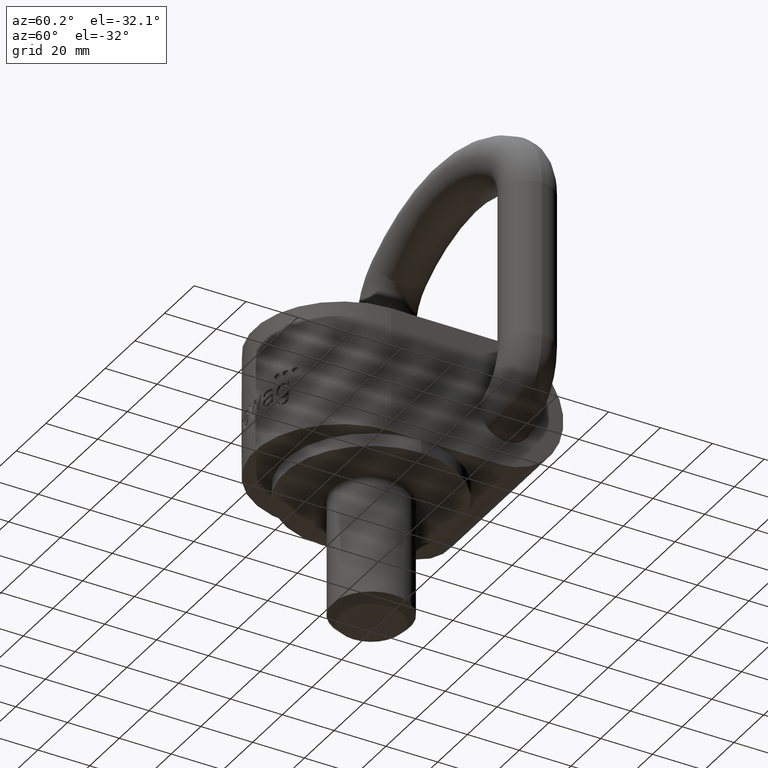
[diagram: clean part render]
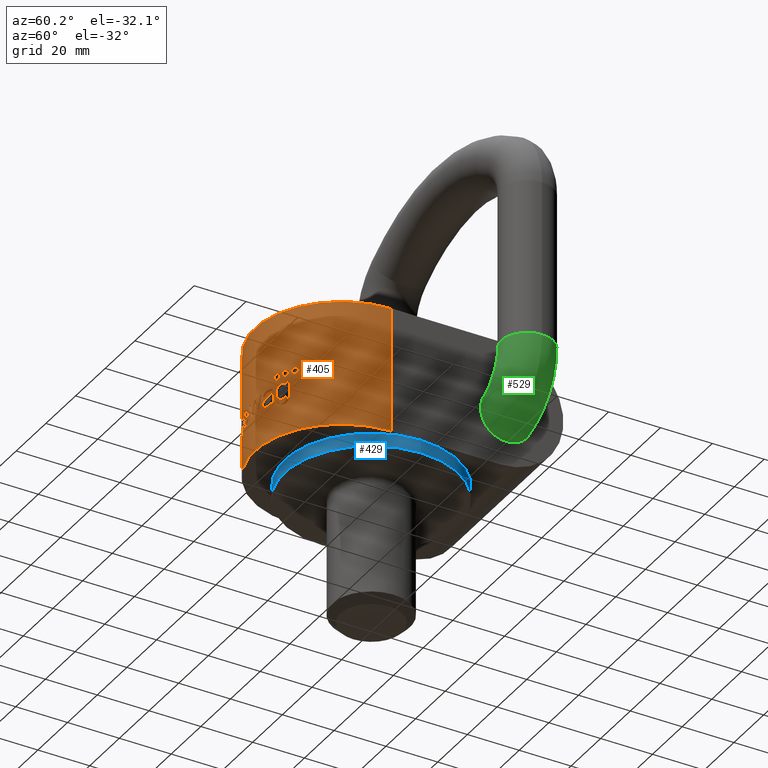
[diagram: same view with three faces highlighted in distinct colors, each labeled with its STEP entity id]
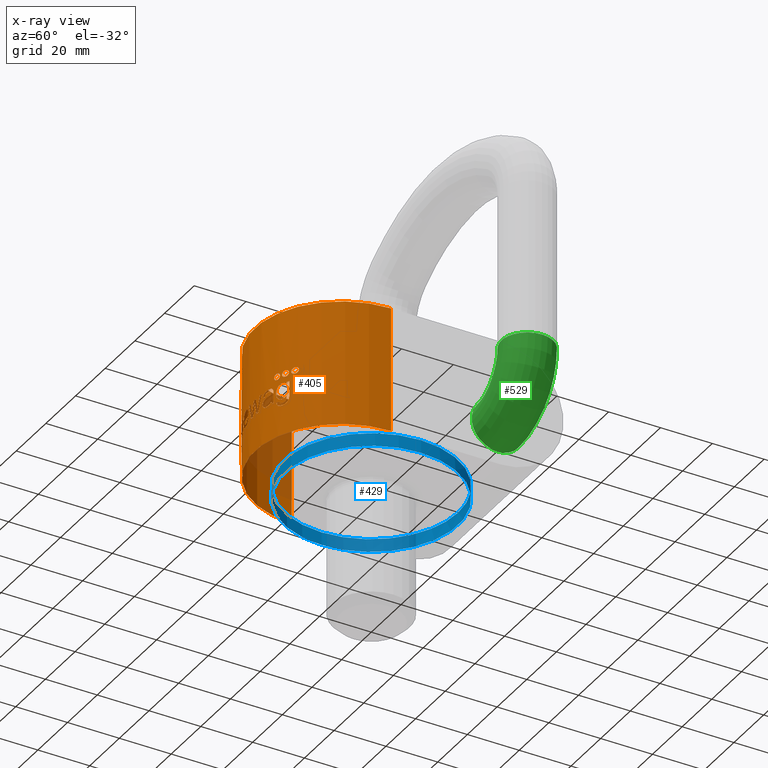
[diagram: x-ray of the same camera — body ghosted, the three highlighted faces saturated]
A machine part, auxiliary view with three faces highlighted in distinct colors.
The next image is the same camera in x-ray (body ghosted, the three faces saturated) — at least one of them is partly hidden behind the body in this view.
Their STEP definitions:

[orange] entity #405 — the highlighted cylindrical surface (partial cylindrical patch) has radius 33.5 mm, axis along (0, -0, -1).
#405=ADVANCED_FACE('',(#568,#569,#570,#571,#572,#573,#574,#575,#576),#537,
 .T.);
#537=CYLINDRICAL_SURFACE('',#2484,33.5);
#555=ELLIPSE('',#2459,33.759979443961,33.5);
#556=ELLIPSE('',#2460,110.108438392227,33.5);
#557=ELLIPSE('',#2462,129.276037275518,33.5);
#558=ELLIPSE('',#2464,131.699154267883,33.5);
#559=ELLIPSE('',#2466,112.295195266052,33.5);
#560=ELLIPSE('',#2468,124.321019642032,33.5);
#561=ELLIPSE('',#2469,135.22408383125,33.5);
#562=ELLIPSE('',#2470,125.911673007627,33.5);
#563=ELLIPSE('',#2472,132.374376589537,33.5);
#564=ELLIPSE('',#2474,116.60992528485,33.5);
#565=ELLIPSE('',#2477,33.8789458737173,33.5);
#566=ELLIPSE('',#2478,33.7870057509765,33.5);
#567=ELLIPSE('',#2479,33.9618190918345,33.5);
#568=FACE_BOUND('',#625,.T.);
#569=FACE_BOUND('',#626,.T.);
#570=FACE_BOUND('',#627,.T.);
#571=FACE_BOUND('',#628,.T.);
#572=FACE_BOUND('',#629,.T.);
#573=FACE_BOUND('',#630,.T.);
#574=FACE_BOUND('',#631,.T.);
#575=FACE_BOUND('',#632,.T.);
#576=FACE_BOUND('',#633,.T.);
#625=EDGE_LOOP('',(#1133,#1134,#1135,#1136,#1137,#1138,#1139,#1140,#1141,
#1142));
#626=EDGE_LOOP('',(#1143,#1144,#1145,#1146,#1147,#1148,#1149,#1150,#1151));
#627=EDGE_LOOP('',(#1152,#1153,#1154,#1155,#1156,#1157,#1158,#1159,#1160,
#1161,#1162,#1163,#1164,#1165,#1166,#1167,#1168,#1169,#1170));
#628=EDGE_LOOP('',(#1171,#1172,#1173,#1174,#1175,#1176,#1177,#1178,#1179,
#1180,#1181,#1182,#1183,#1184,#1185,#1186,#1187));
#629=EDGE_LOOP('',(#1188,#1189,#1190,#1191,#1192,#1193,#1194,#1195,#1196,
#1197,#1198));
#630=EDGE_LOOP('',(#1199));
#631=EDGE_LOOP('',(#1200,#1201,#1202,#1203));
#632=EDGE_LOOP('',(#1204));
#633=EDGE_LOOP('',(#1205));
#789=LINE('',#3085,#919);
#790=LINE('',#3089,#920);
#791=LINE('',#3093,#921);
#792=LINE('',#3617,#922);
#793=LINE('',#3682,#923);
#794=LINE('',#3686,#924);
#919=VECTOR('',#2597,1.);
#920=VECTOR('',#2600,1.);
#921=VECTOR('',#2603,1.);
#922=VECTOR('',#2652,1.);
#923=VECTOR('',#2657,1.);
#924=VECTOR('',#2660,1.);
#1094=CIRCLE('',#2454,33.5);
#1095=CIRCLE('',#2455,33.5);
#1096=CIRCLE('',#2456,33.5);
#1097=CIRCLE('',#2457,33.5);
#1098=CIRCLE('',#2458,33.5);
#1099=CIRCLE('',#2461,33.5);
#1100=CIRCLE('',#2463,33.5);
#1101=CIRCLE('',#2465,33.5);
#1102=CIRCLE('',#2467,33.5);
#1103=CIRCLE('',#2471,33.5);
#1104=CIRCLE('',#2473,33.5);
#1105=CIRCLE('',#2475,33.5);
#1106=CIRCLE('',#2476,33.5);
#1107=CIRCLE('',#2480,33.5);
#1108=CIRCLE('',#2481,33.5);
#1109=CIRCLE('',#2482,33.5);
#1110=CIRCLE('',#2483,33.5);
#1133=ORIENTED_EDGE('',*,*,#1968,.F.);
#1134=ORIENTED_EDGE('',*,*,#1969,.F.);
#1135=ORIENTED_EDGE('',*,*,#1970,.F.);
#1136=ORIENTED_EDGE('',*,*,#1971,.F.);
#1137=ORIENTED_EDGE('',*,*,#1972,.F.);
#1138=ORIENTED_EDGE('',*,*,#1973,.F.);
#1139=ORIENTED_EDGE('',*,*,#1974,.F.);
#1140=ORIENTED_EDGE('',*,*,#1975,.F.);
#1141=ORIENTED_EDGE('',*,*,#1976,.F.);
#1142=ORIENTED_EDGE('',*,*,#1977,.F.);
#1143=ORIENTED_EDGE('',*,*,#1978,.F.);
#1144=ORIENTED_EDGE('',*,*,#1979,.F.);
#1145=ORIENTED_EDGE('',*,*,#1980,.F.);
#1146=ORIENTED_EDGE('',*,*,#1981,.F.);
#1147=ORIENTED_EDGE('',*,*,#1982,.F.);
#1148=ORIENTED_EDGE('',*,*,#1983,.F.);
#1149=ORIENTED_EDGE('',*,*,#1984,.F.);
#1150=ORIENTED_EDGE('',*,*,#1985,.F.);
#1151=ORIENTED_EDGE('',*,*,#1986,.F.);
#1152=ORIENTED_EDGE('',*,*,#1987,.F.);
#1153=ORIENTED_EDGE('',*,*,#1988,.F.);
#1154=ORIENTED_EDGE('',*,*,#1989,.F.);
#1155=ORIENTED_EDGE('',*,*,#1990,.F.);
#1156=ORIENTED_EDGE('',*,*,#1991,.F.);
#1157=ORIENTED_EDGE('',*,*,#1992,.F.);
#1158=ORIENTED_EDGE('',*,*,#1993,.F.);
#1159=ORIENTED_EDGE('',*,*,#1994,.F.);
#1160=ORIENTED_EDGE('',*,*,#1995,.F.);
#1161=ORIENTED_EDGE('',*,*,#1996,.F.);
#1162=ORIENTED_EDGE('',*,*,#1997,.F.);
#1163=ORIENTED_EDGE('',*,*,#1998,.F.);
#1164=ORIENTED_EDGE('',*,*,#1999,.F.);
#1165=ORIENTED_EDGE('',*,*,#2000,.F.);
#1166=ORIENTED_EDGE('',*,*,#2001,.F.);
#1167=ORIENTED_EDGE('',*,*,#2002,.F.);
#1168=ORIENTED_EDGE('',*,*,#2003,.F.);
#1169=ORIENTED_EDGE('',*,*,#2004,.F.);
#1170=ORIENTED_EDGE('',*,*,#2005,.F.);
#1171=ORIENTED_EDGE('',*,*,#2006,.F.);
#1172=ORIENTED_EDGE('',*,*,#2007,.F.);
#1173=ORIENTED_EDGE('',*,*,#2008,.F.);
#1174=ORIENTED_EDGE('',*,*,#2009,.F.);
#1175=ORIENTED_EDGE('',*,*,#2010,.F.);
#1176=ORIENTED_EDGE('',*,*,#2011,.F.);
#1177=ORIENTED_EDGE('',*,*,#2012,.F.);
#1178=ORIENTED_EDGE('',*,*,#2013,.F.);
#1179=ORIENTED_EDGE('',*,*,#2014,.F.);
#1180=ORIENTED_EDGE('',*,*,#2015,.F.);
#1181=ORIENTED_EDGE('',*,*,#2016,.F.);
#1182=ORIENTED_EDGE('',*,*,#2017,.F.);
#1183=ORIENTED_EDGE('',*,*,#2018,.F.);
#1184=ORIENTED_EDGE('',*,*,#2019,.F.);
#1185=ORIENTED_EDGE('',*,*,#2020,.F.);
#1186=ORIENTED_EDGE('',*,*,#2021,.F.);
#1187=ORIENTED_EDGE('',*,*,#2022,.F.);
#1188=ORIENTED_EDGE('',*,*,#2023,.F.);
#1189=ORIENTED_EDGE('',*,*,#2024,.F.);
#1190=ORIENTED_EDGE('',*,*,#2025,.F.);
#1191=ORIENTED_EDGE('',*,*,#2026,.F.);
#1192=ORIENTED_EDGE('',*,*,#2027,.F.);
#1193=ORIENTED_EDGE('',*,*,#2028,.F.);
#1194=ORIENTED_EDGE('',*,*,#2029,.F.);
#1195=ORIENTED_EDGE('',*,*,#2030,.F.);
#1196=ORIENTED_EDGE('',*,*,#2031,.F.);
#1197=ORIENTED_EDGE('',*,*,#2032,.F.);
#1198=ORIENTED_EDGE('',*,*,#2033,.F.);
#1199=ORIENTED_EDGE('',*,*,#2034,.T.);
#1200=ORIENTED_EDGE('',*,*,#2035,.F.);
#1201=ORIENTED_EDGE('',*,*,#2036,.F.);
#1202=ORIENTED_EDGE('',*,*,#2037,.F.);
#1203=ORIENTED_EDGE('',*,*,#2038,.F.);
#1204=ORIENTED_EDGE('',*,*,#2039,.T.);
#1205=ORIENTED_EDGE('',*,*,#2040,.T.);
#1755=VERTEX_POINT('',#3059);
#1756=VERTEX_POINT('',#3060);
#1757=VERTEX_POINT('',#3071);
#1758=VERTEX_POINT('',#3082);
#1759=VERTEX_POINT('',#3084);
#1760=VERTEX_POINT('',#3086);
#1761=VERTEX_POINT('',#3088);
#1762=VERTEX_POINT('',#3090);
#1763=VERTEX_POINT('',#3092);
#1764=VERTEX_POINT('',#3094);
#1765=VERTEX_POINT('',#3097);
#1766=VERTEX_POINT('',#3098);
#1767=VERTEX_POINT('',#3109);
#1768=VERTEX_POINT('',#3126);
#1769=VERTEX_POINT('',#3137);
#1770=VERTEX_POINT('',#3139);
#1771=VERTEX_POINT('',#3150);
#1772=VERTEX_POINT('',#3167);
#1773=VERTEX_POINT('',#3178);
#1774=VERTEX_POINT('',#3190);
#1775=VERTEX_POINT('',#3191);
#1776=VERTEX_POINT('',#3193);
#1777=VERTEX_POINT('',#3195);
#1778=VERTEX_POINT('',#3260);
#1779=VERTEX_POINT('',#3271);
#1780=VERTEX_POINT('',#3273);
#1781=VERTEX_POINT('',#3275);
#1782=VERTEX_POINT('',#3277);
#1783=VERTEX_POINT('',#3279);
#1784=VERTEX_POINT('',#3281);
#1785=VERTEX_POINT('',#3283);
#1786=VERTEX_POINT('',#3285);
#1787=VERTEX_POINT('',#3287);
#1788=VERTEX_POINT('',#3289);
#1789=VERTEX_POINT('',#3291);
#1790=VERTEX_POINT('',#3302);
#1791=VERTEX_POINT('',#3304);
#1792=VERTEX_POINT('',#3306);
#1793=VERTEX_POINT('',#3309);
#1794=VERTEX_POINT('',#3310);
#1795=VERTEX_POINT('',#3321);
#1796=VERTEX_POINT('',#3353);
#1797=VERTEX_POINT('',#3364);
#1798=VERTEX_POINT('',#3366);
#1799=VERTEX_POINT('',#3377);
#1800=VERTEX_POINT('',#3388);
#1801=VERTEX_POINT('',#3399);
#1802=VERTEX_POINT('',#3410);
#1803=VERTEX_POINT('',#3421);
#1804=VERTEX_POINT('',#3432);
#1805=VERTEX_POINT('',#3434);
#1806=VERTEX_POINT('',#3445);
#1807=VERTEX_POINT('',#3452);
#1808=VERTEX_POINT('',#3463);
#1809=VERTEX_POINT('',#3470);
#1810=VERTEX_POINT('',#3491);
#1811=VERTEX_POINT('',#3492);
#1812=VERTEX_POINT('',#3512);
#1813=VERTEX_POINT('',#3526);
#1814=VERTEX_POINT('',#3528);
#1815=VERTEX_POINT('',#3539);
#1816=VERTEX_POINT('',#3553);
#1817=VERTEX_POINT('',#3567);
#1818=VERTEX_POINT('',#3614);
#1819=VERTEX_POINT('',#3616);
#1820=VERTEX_POINT('',#3618);
#1821=VERTEX_POINT('',#3678);
#1822=VERTEX_POINT('',#3680);
#1823=VERTEX_POINT('',#3681);
#1824=VERTEX_POINT('',#3683);
#1825=VERTEX_POINT('',#3685);
#1826=VERTEX_POINT('',#3745);
#1827=VERTEX_POINT('',#3804);
#1968=EDGE_CURVE('',#1755,#1756,#2279,.T.);
#1969=EDGE_CURVE('',#1757,#1755,#2280,.T.);
#1970=EDGE_CURVE('',#1758,#1757,#2281,.T.);
#1971=EDGE_CURVE('',#1759,#1758,#1094,.T.);
#1972=EDGE_CURVE('',#1760,#1759,#789,.T.);
#1973=EDGE_CURVE('',#1761,#1760,#1095,.T.);
#1974=EDGE_CURVE('',#1762,#1761,#790,.T.);
#1975=EDGE_CURVE('',#1763,#1762,#1096,.T.);
#1976=EDGE_CURVE('',#1764,#1763,#791,.T.);
#1977=EDGE_CURVE('',#1756,#1764,#1097,.T.);
#1978=EDGE_CURVE('',#1765,#1766,#1098,.T.);
#1979=EDGE_CURVE('',#1767,#1765,#2282,.T.);
#1980=EDGE_CURVE('',#1768,#1767,#2283,.T.);
#1981=EDGE_CURVE('',#1769,#1768,#2284,.T.);
#1982=EDGE_CURVE('',#1770,#1769,#555,.T.);
#1983=EDGE_CURVE('',#1771,#1770,#2285,.T.);
#1984=EDGE_CURVE('',#1772,#1771,#2286,.T.);
#1985=EDGE_CURVE('',#1773,#1772,#2287,.T.);
#1986=EDGE_CURVE('',#1766,#1773,#2288,.T.);
#1987=EDGE_CURVE('',#1774,#1775,#556,.T.);
#1988=EDGE_CURVE('',#1776,#1774,#1099,.T.);
#1989=EDGE_CURVE('',#1777,#1776,#557,.T.);
#1990=EDGE_CURVE('',#1778,#1777,#2289,.T.);
#1991=EDGE_CURVE('',#1779,#1778,#2290,.T.);
#1992=EDGE_CURVE('',#1780,#1779,#1100,.T.);
#1993=EDGE_CURVE('',#1781,#1780,#558,.T.);
#1994=EDGE_CURVE('',#1782,#1781,#1101,.T.);
#1995=EDGE_CURVE('',#1783,#1782,#559,.T.);
#1996=EDGE_CURVE('',#1784,#1783,#1102,.T.);
#1997=EDGE_CURVE('',#1785,#1784,#560,.T.);
#1998=EDGE_CURVE('',#1786,#1785,#561,.T.);
#1999=EDGE_CURVE('',#1787,#1786,#562,.T.);
#2000=EDGE_CURVE('',#1788,#1787,#1103,.T.);
#2001=EDGE_CURVE('',#1789,#1788,#563,.T.);
#2002=EDGE_CURVE('',#1790,#1789,#2291,.T.);
#2003=EDGE_CURVE('',#1791,#1790,#1104,.T.);
#2004=EDGE_CURVE('',#1792,#1791,#564,.T.);
#2005=EDGE_CURVE('',#1775,#1792,#1105,.T.);
#2006=EDGE_CURVE('',#1793,#1794,#1106,.T.);
#2007=EDGE_CURVE('',#1795,#1793,#2292,.T.);
#2008=EDGE_CURVE('',#1796,#1795,#2293,.T.);
#2009=EDGE_CURVE('',#1797,#1796,#2294,.T.);
#2010=EDGE_CURVE('',#1798,#1797,#565,.T.);
#2011=EDGE_CURVE('',#1799,#1798,#2295,.T.);
#2012=EDGE_CURVE('',#1800,#1799,#2296,.T.);
#2013=EDGE_CURVE('',#1801,#1800,#2297,.T.);
#2014=EDGE_CURVE('',#1802,#1801,#2298,.T.);
#2015=EDGE_CURVE('',#1803,#1802,#2299,.T.);
#2016=EDGE_CURVE('',#1804,#1803,#2300,.T.);
#2017=EDGE_CURVE('',#1805,#1804,#566,.T.);
#2018=EDGE_CURVE('',#1806,#1805,#2301,.T.);
#2019=EDGE_CURVE('',#1807,#1806,#2302,.T.);
#2020=EDGE_CURVE('',#1808,#1807,#2303,.T.);
#2021=EDGE_CURVE('',#1809,#1808,#2304,.T.);
#2022=EDGE_CURVE('',#1794,#1809,#2305,.T.);
#2023=EDGE_CURVE('',#1810,#1811,#2306,.T.);
#2024=EDGE_CURVE('',#1812,#1810,#2307,.T.);
#2025=EDGE_CURVE('',#1813,#1812,#2308,.T.);
#2026=EDGE_CURVE('',#1814,#1813,#567,.T.);
#2027=EDGE_CURVE('',#1815,#1814,#2309,.T.);
#2028=EDGE_CURVE('',#1816,#1815,#2310,.T.);
#2029=EDGE_CURVE('',#1817,#1816,#2311,.T.);
#2030=EDGE_CURVE('',#1818,#1817,#2312,.T.);
#2031=EDGE_CURVE('',#1819,#1818,#1107,.T.);
#2032=EDGE_CURVE('',#1820,#1819,#792,.T.);
#2033=EDGE_CURVE('',#1811,#1820,#1108,.T.);
#2034=EDGE_CURVE('',#1821,#1821,#2313,.T.);
#2035=EDGE_CURVE('',#1822,#1823,#1109,.T.);
#2036=EDGE_CURVE('',#1824,#1822,#793,.T.);
#2037=EDGE_CURVE('',#1825,#1824,#1110,.T.);
#2038=EDGE_CURVE('',#1823,#1825,#794,.T.);
#2039=EDGE_CURVE('',#1826,#1826,#2314,.T.);
#2040=EDGE_CURVE('',#1827,#1827,#2315,.T.);
#2279=B_SPLINE_CURVE_WITH_KNOTS('',3,(#3049,#3050,#3051,#3052,#3053,#3054,
#3055,#3056,#3057,#3058),.UNSPECIFIED.,.F.,.F.,(4,3,3,4),(0.,0.391657797747274,
0.694208532104586,1.),.UNSPECIFIED.);
#2280=B_SPLINE_CURVE_WITH_KNOTS('',3,(#3061,#3062,#3063,#3064,#3065,#3066,
#3067,#3068,#3069,#3070),.UNSPECIFIED.,.F.,.F.,(4,3,3,4),(0.,0.352238037569736,
0.705837311240727,1.),.UNSPECIFIED.);
#2281=B_SPLINE_CURVE_WITH_KNOTS('',3,(#3072,#3073,#3074,#3075,#3076,#3077,
#3078,#3079,#3080,#3081),.UNSPECIFIED.,.F.,.F.,(4,2,2,2,4),(0.,0.25,0.5,
0.75,1.),.UNSPECIFIED.);
#2282=B_SPLINE_CURVE_WITH_KNOTS('',3,(#3099,#3100,#3101,#3102,#3103,#3104,
#3105,#3106,#3107,#3108),.UNSPECIFIED.,.F.,.F.,(4,3,3,4),(0.,0.247240170800065,
0.663841143719349,1.),.UNSPECIFIED.);
#2283=B_SPLINE_CURVE_WITH_KNOTS('',3,(#3110,#3111,#3112,#3113,#3114,#3115,
#3116,#3117,#3118,#3119,#3120,#3121,#3122,#3123,#3124,#3125),
 .UNSPECIFIED.,.F.,.F.,(4,3,3,3,3,4),(0.,0.198766169573319,0.395634693446509,
0.63496904215588,0.906976755550902,1.),.UNSPECIFIED.);
#2284=B_SPLINE_CURVE_WITH_KNOTS('',3,(#3127,#3128,#3129,#3130,#3131,#3132,
#3133,#3134,#3135,#3136),.UNSPECIFIED.,.F.,.F.,(4,3,3,4),(0.,0.291582744666727,
0.583827807706865,1.),.UNSPECIFIED.);
#2285=B_SPLINE_CURVE_WITH_KNOTS('',3,(#3140,#3141,#3142,#3143,#3144,#3145,
#3146,#3147,#3148,#3149),.UNSPECIFIED.,.F.,.F.,(4,3,3,4),(0.,0.279743626133193,
0.74666644962346,1.),.UNSPECIFIED.);
#2286=B_SPLINE_CURVE_WITH_KNOTS('',3,(#3151,#3152,#3153,#3154,#3155,#3156,
#3157,#3158,#3159,#3160,#3161,#3162,#3163,#3164,#3165,#3166),
 .UNSPECIFIED.,.F.,.F.,(4,3,3,3,3,4),(0.,0.203862272098563,0.406656114901402,
0.720007632425522,0.924503863407853,1.),.UNSPECIFIED.);
#2287=B_SPLINE_CURVE_WITH_KNOTS('',3,(#3168,#3169,#3170,#3171,#3172,#3173,
#3174,#3175,#3176,#3177),.UNSPECIFIED.,.F.,.F.,(4,2,2,2,4),(0.,0.25,0.5,
0.75,1.),.UNSPECIFIED.);
#2288=B_SPLINE_CURVE_WITH_KNOTS('',3,(#3179,#3180,#3181,#3182,#3183,#3184,
#3185,#3186,#3187,#3188),.UNSPECIFIED.,.F.,.F.,(4,3,3,4),(0.,0.326762048751424,
0.655781069521529,1.),.UNSPECIFIED.);
#2289=B_SPLINE_CURVE_WITH_KNOTS('',3,(#3196,#3197,#3198,#3199,#3200,#3201,
#3202,#3203,#3204,#3205,#3206,#3207,#3208,#3209,#3210,#3211,#3212,#3213,
#3214,#3215,#3216,#3217,#3218,#3219,#3220,#3221,#3222,#3223,#3224,#3225,
#3226,#3227,#3228,#3229,#3230,#3231,#3232,#3233,#3234,#3235,#3236,#3237,
#3238,#3239,#3240,#3241,#3242,#3243,#3244,#3245,#3246,#3247,#3248,#3249,
#3250,#3251,#3252,#3253,#3254,#3255,#3256,#3257,#3258,#3259),
 .UNSPECIFIED.,.F.,.F.,(4,3,3,3,3,3,3,3,3,3,3,3,3,3,3,3,3,3,3,3,3,4),(0.,
0.499553315865349,0.74937145765682,0.834029702781726,0.889946163444827,
0.926899980438228,0.951339488322826,0.967517620447377,0.978239998190354,
0.985357925992692,0.990093337520728,0.993253011920596,0.995369807568771,
0.996795785622307,0.997763616137826,0.998427273364752,0.998888982341642,
0.999371387659991,0.999590041197819,0.999773233085329,0.999908554331049,
1.),.UNSPECIFIED.);
#2290=B_SPLINE_CURVE_WITH_KNOTS('',3,(#3261,#3262,#3263,#3264,#3265,#3266,
#3267,#3268,#3269,#3270),.UNSPECIFIED.,.F.,.F.,(4,3,3,4),(0.,0.133710786362456,
0.662259428205876,1.),.UNSPECIFIED.);
#2291=B_SPLINE_CURVE_WITH_KNOTS('',3,(#3292,#3293,#3294,#3295,#3296,#3297,
#3298,#3299,#3300,#3301),.UNSPECIFIED.,.F.,.F.,(4,3,3,4),(0.,0.28445112459851,
0.642221045653071,1.),.UNSPECIFIED.);
#2292=B_SPLINE_CURVE_WITH_KNOTS('',3,(#3311,#3312,#3313,#3314,#3315,#3316,
#3317,#3318,#3319,#3320),.UNSPECIFIED.,.F.,.F.,(4,3,3,4),(0.,0.298107772476789,
0.596459384136435,1.),.UNSPECIFIED.);
#2293=B_SPLINE_CURVE_WITH_KNOTS('',3,(#3322,#3323,#3324,#3325,#3326,#3327,
#3328,#3329,#3330,#3331,#3332,#3333,#3334,#3335,#3336,#3337,#3338,#3339,
#3340,#3341,#3342,#3343,#3344,#3345,#3346,#3347,#3348,#3349,#3350,#3351,
#3352),.UNSPECIFIED.,.F.,.F.,(4,3,3,3,3,3,3,3,3,3,4),(0.,0.0780122411292465,
0.156314956137167,0.252221628366493,0.327487061807231,0.402822724376749,
0.479618288086873,0.589759700126464,0.751045473062601,0.909884427350638,
1.),.UNSPECIFIED.);
#2294=B_SPLINE_CURVE_WITH_KNOTS('',3,(#3354,#3355,#3356,#3357,#3358,#3359,
#3360,#3361,#3362,#3363),.UNSPECIFIED.,.F.,.F.,(4,3,3,4),(0.,0.336609162967316,
0.658853350552494,1.),.UNSPECIFIED.);
#2295=B_SPLINE_CURVE_WITH_KNOTS('',3,(#3367,#3368,#3369,#3370,#3371,#3372,
#3373,#3374,#3375,#3376),.UNSPECIFIED.,.F.,.F.,(4,3,3,4),(0.,0.296612768273013,
0.593035536686834,1.),.UNSPECIFIED.);
#2296=B_SPLINE_CURVE_WITH_KNOTS('',3,(#3378,#3379,#3380,#3381,#3382,#3383,
#3384,#3385,#3386,#3387),.UNSPECIFIED.,.F.,.F.,(4,3,3,4),(0.,0.354196373045443,
0.676989757518125,1.),.UNSPECIFIED.);
#2297=B_SPLINE_CURVE_WITH_KNOTS('',3,(#3389,#3390,#3391,#3392,#3393,#3394,
#3395,#3396,#3397,#3398),.UNSPECIFIED.,.F.,.F.,(4,3,3,4),(0.,0.284062316983167,
0.568435846295655,1.),.UNSPECIFIED.);
#2298=B_SPLINE_CURVE_WITH_KNOTS('',3,(#3400,#3401,#3402,#3403,#3404,#3405,
#3406,#3407,#3408,#3409),.UNSPECIFIED.,.F.,.F.,(4,3,3,4),(0.,0.294807138526067,
0.590298925498004,1.),.UNSPECIFIED.);
#2299=B_SPLINE_CURVE_WITH_KNOTS('',3,(#3411,#3412,#3413,#3414,#3415,#3416,
#3417,#3418,#3419,#3420),.UNSPECIFIED.,.F.,.F.,(4,3,3,4),(0.,0.278855867610483,
0.735722394138978,1.),.UNSPECIFIED.);
#2300=B_SPLINE_CURVE_WITH_KNOTS('',3,(#3422,#3423,#3424,#3425,#3426,#3427,
#3428,#3429,#3430,#3431),.UNSPECIFIED.,.F.,.F.,(4,3,3,4),(0.,0.324752376652673,
0.768673925460953,1.),.UNSPECIFIED.);
#2301=B_SPLINE_CURVE_WITH_KNOTS('',3,(#3435,#3436,#3437,#3438,#3439,#3440,
#3441,#3442,#3443,#3444),.UNSPECIFIED.,.F.,.F.,(4,3,3,4),(0.,0.276746719904195,
0.659623398338798,1.),.UNSPECIFIED.);
#2302=B_SPLINE_CURVE_WITH_KNOTS('',3,(#3446,#3447,#3448,#3449,#3450,#3451),
 .UNSPECIFIED.,.F.,.F.,(4,2,4),(0.,0.5,1.),.UNSPECIFIED.);
#2303=B_SPLINE_CURVE_WITH_KNOTS('',3,(#3453,#3454,#3455,#3456,#3457,#3458,
#3459,#3460,#3461,#3462),.UNSPECIFIED.,.F.,.F.,(4,3,3,4),(0.,0.260453290197963,
0.651117404602226,1.),.UNSPECIFIED.);
#2304=B_SPLINE_CURVE_WITH_KNOTS('',3,(#3464,#3465,#3466,#3467,#3468,#3469),
 .UNSPECIFIED.,.F.,.F.,(4,2,4),(0.,0.5,1.),.UNSPECIFIED.);
#2305=B_SPLINE_CURVE_WITH_KNOTS('',3,(#3471,#3472,#3473,#3474,#3475,#3476,
#3477,#3478,#3479,#3480),.UNSPECIFIED.,.F.,.F.,(4,3,3,4),(0.,0.264702455054178,
0.529532191004705,1.),.UNSPECIFIED.);
#2306=B_SPLINE_CURVE_WITH_KNOTS('',3,(#3481,#3482,#3483,#3484,#3485,#3486,
#3487,#3488,#3489,#3490),.UNSPECIFIED.,.F.,.F.,(4,3,3,4),(0.,0.146567078125613,
0.470503150225443,1.),.UNSPECIFIED.);
#2307=B_SPLINE_CURVE_WITH_KNOTS('',3,(#3493,#3494,#3495,#3496,#3497,#3498,
#3499,#3500,#3501,#3502,#3503,#3504,#3505,#3506,#3507,#3508,#3509,#3510,
#3511),.UNSPECIFIED.,.F.,.F.,(4,3,3,3,3,3,4),(0.,0.191184255901727,0.449337348737349,
0.671797294418088,0.828129636679742,0.957888930864546,1.),.UNSPECIFIED.);
#2308=B_SPLINE_CURVE_WITH_KNOTS('',3,(#3513,#3514,#3515,#3516,#3517,#3518,
#3519,#3520,#3521,#3522,#3523,#3524,#3525),.UNSPECIFIED.,.F.,.F.,(4,3,3,
3,4),(0.,0.401043475483821,0.633320924333613,0.866741825314161,1.),
 .UNSPECIFIED.);
#2309=B_SPLINE_CURVE_WITH_KNOTS('',3,(#3529,#3530,#3531,#3532,#3533,#3534,
#3535,#3536,#3537,#3538),.UNSPECIFIED.,.F.,.F.,(4,3,3,4),(0.,0.256741034386164,
0.614734922507596,1.),.UNSPECIFIED.);
#2310=B_SPLINE_CURVE_WITH_KNOTS('',3,(#3540,#3541,#3542,#3543,#3544,#3545,
#3546,#3547,#3548,#3549,#3550,#3551,#3552),.UNSPECIFIED.,.F.,.F.,(4,3,3,
3,4),(0.,0.199350171071172,0.498071015390854,0.843112996930399,1.),
 .UNSPECIFIED.);
#2311=B_SPLINE_CURVE_WITH_KNOTS('',3,(#3554,#3555,#3556,#3557,#3558,#3559,
#3560,#3561,#3562,#3563,#3564,#3565,#3566),.UNSPECIFIED.,.F.,.F.,(4,3,3,
3,4),(0.,0.368966348729239,0.743470048428428,0.957910841717712,1.),
 .UNSPECIFIED.);
#2312=B_SPLINE_CURVE_WITH_KNOTS('',3,(#3568,#3569,#3570,#3571,#3572,#3573,
#3574,#3575,#3576,#3577,#3578,#3579,#3580,#3581,#3582,#3583,#3584,#3585,
#3586,#3587,#3588,#3589,#3590,#3591,#3592,#3593,#3594,#3595,#3596,#3597,
#3598,#3599,#3600,#3601,#3602,#3603,#3604,#3605,#3606,#3607,#3608,#3609,
#3610,#3611,#3612,#3613),.UNSPECIFIED.,.F.,.F.,(4,3,3,3,3,3,3,3,3,3,3,3,
3,3,3,4),(0.,0.0693455366971813,0.13118160769929,0.203672485315909,0.260879031244553,
0.318211849546087,0.394648743714288,0.490824651035577,0.59009828763687,
0.666939584909722,0.731168834752817,0.796085378360972,0.866356182898296,
0.922400773229933,0.978520980008001,1.),.UNSPECIFIED.);
#2313=B_SPLINE_CURVE_WITH_KNOTS('',3,(#3620,#3621,#3622,#3623,#3624,#3625,
#3626,#3627,#3628,#3629,#3630,#3631,#3632,#3633,#3634,#3635,#3636,#3637,
#3638,#3639,#3640,#3641,#3642,#3643,#3644,#3645,#3646,#3647,#3648,#3649,
#3650,#3651,#3652,#3653,#3654,#3655,#3656,#3657,#3658,#3659,#3660,#3661,
#3662,#3663,#3664,#3665,#3666,#3667,#3668,#3669,#3670,#3671,#3672,#3673,
#3674,#3675,#3676,#3677),.UNSPECIFIED.,.T.,.F.,(1,3,3,3,3,3,3,3,3,3,3,3,
3,3,3,3,3,3,3,3,3,1),(-0.0367073868415195,0.,0.0609914840100618,0.122231249399367,
0.179301292083764,0.230755369736953,0.278391120314941,0.324878189726589,
0.372681240418361,0.423792491215209,0.479527479500674,0.539959743675106,
0.603004205015671,0.664124531326777,0.718757726555894,0.766536662648827,
0.81120638076268,0.857057487616173,0.907225610016424,0.96329261315848,1.,
1.06099148401006),.UNSPECIFIED.);
#2314=B_SPLINE_CURVE_WITH_KNOTS('',3,(#3687,#3688,#3689,#3690,#3691,#3692,
#3693,#3694,#3695,#3696,#3697,#3698,#3699,#3700,#3701,#3702,#3703,#3704,
#3705,#3706,#3707,#3708,#3709,#3710,#3711,#3712,#3713,#3714,#3715,#3716,
#3717,#3718,#3719,#3720,#3721,#3722,#3723,#3724,#3725,#3726,#3727,#3728,
#3729,#3730,#3731,#3732,#3733,#3734,#3735,#3736,#3737,#3738,#3739,#3740,
#3741,#3742,#3743,#3744),.UNSPECIFIED.,.T.,.F.,(1,3,3,3,3,3,3,3,3,3,3,3,
3,3,3,3,3,3,3,3,3,1),(-0.0367197482967917,0.,0.0576245706939579,0.115380338516389,
0.170999496159536,0.22356569032424,0.273920264410147,0.323453498183324,
0.373593188642526,0.425570256117129,0.480210313262633,0.537583476956382,
0.596550106951982,0.654679211305301,0.709389457177727,0.759995746809845,
0.808271178746387,0.856951409014801,0.908279432979368,0.963280251703208,
1.,1.05762457069396),.UNSPECIFIED.);
#2315=B_SPLINE_CURVE_WITH_KNOTS('',3,(#3746,#3747,#3748,#3749,#3750,#3751,
#3752,#3753,#3754,#3755,#3756,#3757,#3758,#3759,#3760,#3761,#3762,#3763,
#3764,#3765,#3766,#3767,#3768,#3769,#3770,#3771,#3772,#3773,#3774,#3775,
#3776,#3777,#3778,#3779,#3780,#3781,#3782,#3783,#3784,#3785,#3786,#3787,
#3788,#3789,#3790,#3791,#3792,#3793,#3794,#3795,#3796,#3797,#3798,#3799,
#3800,#3801,#3802,#3803),.UNSPECIFIED.,.T.,.F.,(1,3,3,3,3,3,3,3,3,3,3,3,
3,3,3,3,3,3,3,3,3,1),(-0.065995406742675,0.,0.0748415571720549,0.141559223989639,
0.189406139175088,0.237532672015932,0.28131226716205,0.323847856577255,
0.368697963810671,0.418673756299005,0.475805103754143,0.540469776596686,
0.609516497803679,0.662909236118807,0.707889954346455,0.753174917817907,
0.793903464076125,0.834776206969872,0.880423710865825,0.934004593257325,
1.,1.07484155717205),.UNSPECIFIED.);
#2454=AXIS2_PLACEMENT_3D('',#3083,#2595,#2596);
#2455=AXIS2_PLACEMENT_3D('',#3087,#2598,#2599);
#2456=AXIS2_PLACEMENT_3D('',#3091,#2601,#2602);
#2457=AXIS2_PLACEMENT_3D('',#3095,#2604,#2605);
#2458=AXIS2_PLACEMENT_3D('',#3096,#2606,#2607);
#2459=AXIS2_PLACEMENT_3D('',#3138,#2608,#2609);
#2460=AXIS2_PLACEMENT_3D('',#3189,#2610,#2611);
#2461=AXIS2_PLACEMENT_3D('',#3192,#2612,#2613);
#2462=AXIS2_PLACEMENT_3D('',#3194,#2614,#2615);
#2463=AXIS2_PLACEMENT_3D('',#3272,#2616,#2617);
#2464=AXIS2_PLACEMENT_3D('',#3274,#2618,#2619);
#2465=AXIS2_PLACEMENT_3D('',#3276,#2620,#2621);
#2466=AXIS2_PLACEMENT_3D('',#3278,#2622,#2623);
#2467=AXIS2_PLACEMENT_3D('',#3280,#2624,#2625);
#2468=AXIS2_PLACEMENT_3D('',#3282,#2626,#2627);
#2469=AXIS2_PLACEMENT_3D('',#3284,#2628,#2629);
#2470=AXIS2_PLACEMENT_3D('',#3286,#2630,#2631);
#2471=AXIS2_PLACEMENT_3D('',#3288,#2632,#2633);
#2472=AXIS2_PLACEMENT_3D('',#3290,#2634,#2635);
#2473=AXIS2_PLACEMENT_3D('',#3303,#2636,#2637);
#2474=AXIS2_PLACEMENT_3D('',#3305,#2638,#2639);
#2475=AXIS2_PLACEMENT_3D('',#3307,#2640,#2641);
#2476=AXIS2_PLACEMENT_3D('',#3308,#2642,#2643);
#2477=AXIS2_PLACEMENT_3D('',#3365,#2644,#2645);
#2478=AXIS2_PLACEMENT_3D('',#3433,#2646,#2647);
#2479=AXIS2_PLACEMENT_3D('',#3527,#2648,#2649);
#2480=AXIS2_PLACEMENT_3D('',#3615,#2650,#2651);
#2481=AXIS2_PLACEMENT_3D('',#3619,#2653,#2654);
#2482=AXIS2_PLACEMENT_3D('',#3679,#2655,#2656);
#2483=AXIS2_PLACEMENT_3D('',#3684,#2658,#2659);
#2484=AXIS2_PLACEMENT_3D('',#3805,#2661,#2662);
#2595=DIRECTION('',(6.71983558780043E-14,0.,1.));
#2596=DIRECTION('',(-1.,0.,6.72140618453103E-14));
#2597=DIRECTION('',(0.,1.43069977400149E-16,1.));
#2598=DIRECTION('',(0.,0.,1.));
#2599=DIRECTION('',(-1.,0.,0.));
#2600=DIRECTION('',(0.,-1.43069977400149E-16,-1.));
#2601=DIRECTION('',(0.,0.,-1.));
#2602=DIRECTION('',(1.,0.,0.));
#2603=DIRECTION('',(0.,1.43069977400149E-16,1.));
#2604=DIRECTION('',(0.,0.,-1.));
#2605=DIRECTION('',(1.,0.,0.));
#2606=DIRECTION('',(0.,0.,1.));
#2607=DIRECTION('',(-1.,0.,0.));
#2608=DIRECTION('',(-0.123864170013733,0.,-0.992299182397531));
#2609=DIRECTION('',(0.992299182397531,-1.1550553915978E-15,-0.123864170013733));
#2610=DIRECTION('',(-0.952593648183112,-6.16297582203915E-33,0.304245528218887));
#2611=DIRECTION('',(-0.304245528218887,-1.50189934263185E-16,-0.952593648183112));
#2612=DIRECTION('',(0.,0.,1.));
#2613=DIRECTION('',(-1.,0.,0.));
#2614=DIRECTION('',(0.965840998800877,0.,0.259135418334362));
#2615=DIRECTION('',(0.259135418334362,-1.48129948488183E-16,-0.965840998800877));
#2616=DIRECTION('',(0.,0.,1.));
#2617=DIRECTION('',(-1.,0.,0.));
#2618=DIRECTION('',(-0.96710760287855,0.,0.254367616756742));
#2619=DIRECTION('',(-0.254367616756742,-1.47935945260184E-16,-0.96710760287855));
#2620=DIRECTION('',(0.,0.,1.));
#2621=DIRECTION('',(-1.,0.,0.));
#2622=DIRECTION('',(0.954465641275027,0.,0.298320866895784));
#2623=DIRECTION('',(0.298320866895784,-1.49895366803386E-16,-0.954465641275027));
#2624=DIRECTION('',(0.,0.,-1.));
#2625=DIRECTION('',(1.,0.,0.));
#2626=DIRECTION('',(-0.963010551756508,0.,-0.269463684391098));
#2627=DIRECTION('',(0.269463684391098,-1.48565326869153E-16,-0.963010551756508));
#2628=DIRECTION('',(0.968827338219047,0.,-0.247736934507951));
#2629=DIRECTION('',(-0.247736934507951,-1.47673348754948E-16,-0.968827338219047));
#2630=DIRECTION('',(0.963956601090742,0.,-0.266059525696007));
#2631=DIRECTION('',(-0.266059525696007,-1.48419521416485E-16,-0.963956601090742));
#2632=DIRECTION('',(0.,0.,-1.));
#2633=DIRECTION('',(1.,0.,0.));
#2634=DIRECTION('',(-0.967447937590639,0.,-0.25307012477102));
#2635=DIRECTION('',(0.25307012477102,-1.47883903454748E-16,-0.967447937590639));
#2636=DIRECTION('',(-7.23405691542815E-14,0.,-1.));
#2637=DIRECTION('',(1.,0.,-7.23405580877492E-14));
#2638=DIRECTION('',(0.957845874951684,-6.16297582203915E-33,-0.287282578375447));
#2639=DIRECTION('',(-0.287282578375446,-1.49366386745014E-16,-0.957845874951683));
#2640=DIRECTION('',(0.,0.,-1.));
#2641=DIRECTION('',(1.,0.,0.));
#2642=DIRECTION('',(0.,0.,1.));
#2643=DIRECTION('',(-1.,0.,0.));
#2644=DIRECTION('',(0.149149158822097,-2.46519032881566E-32,-0.988814708842188));
#2645=DIRECTION('',(-0.988814708842188,-9.59240927203623E-16,-0.149149158822097));
#2646=DIRECTION('',(0.130065224599899,0.,0.991505439899236));
#2647=DIRECTION('',(0.991505439899236,-1.09998639405924E-15,-0.130065224599899));
#2648=DIRECTION('',(-0.164351632031854,0.,-0.986401815209434));
#2649=DIRECTION('',(0.986401815209434,-8.70511449332125E-16,-0.164351632031854));
#2650=DIRECTION('',(0.,0.,-1.));
#2651=DIRECTION('',(1.,0.,0.));
#2652=DIRECTION('',(0.,-1.43069977400149E-16,-1.));
#2653=DIRECTION('',(0.,0.,-1.));
#2654=DIRECTION('',(1.,0.,0.));
#2655=DIRECTION('',(0.,8.79066173012902E-17,-1.));
#2656=DIRECTION('',(0.,-1.,-8.79066173012902E-17));
#2657=DIRECTION('',(0.,-1.43069977400149E-16,-1.));
#2658=DIRECTION('',(0.,9.16025597875542E-17,1.));
#2659=DIRECTION('',(0.,1.,0.));
#2660=DIRECTION('',(0.,1.43069977400149E-16,1.));
#2661=DIRECTION('',(0.,-1.43069977400149E-16,-1.));
#2662=DIRECTION('',(0.,1.,-2.07131161310664E-16));
#3049=CARTESIAN_POINT('',(-13.6072697025907,-42.1119618979405,20.1982284471732));
#3050=CARTESIAN_POINT('',(-13.855391733724,-42.0016696073633,20.1982284471732));
#3051=CARTESIAN_POINT('',(-14.1071718394546,-41.8859004911685,20.1596776307612));
#3052=CARTESIAN_POINT('',(-14.3380265677269,-41.7765750068127,20.067574619957));
#3053=CARTESIAN_POINT('',(-14.5169131469089,-41.6918599911828,19.9962050939419));
#3054=CARTESIAN_POINT('',(-14.6867379473554,-41.6094054386889,19.8903576687396));
#3055=CARTESIAN_POINT('',(-14.8328848878716,-41.5372356568169,19.7573041242903));
#3056=CARTESIAN_POINT('',(-14.9808420796856,-41.4641719428459,19.6226025100924));
#3057=CARTESIAN_POINT('',(-15.1082172514583,-41.3999210669376,19.4576095568447));
#3058=CARTESIAN_POINT('',(-15.2117693162579,-41.3471451611198,19.2790995139422));
#3059=CARTESIAN_POINT('',(-13.6072697025907,-42.1119618979405,20.1982284471732));
#3060=CARTESIAN_POINT('',(-15.2117693162579,-41.3471451611198,19.2790995139422));
#3061=CARTESIAN_POINT('',(-11.8597948758243,-42.830420768055,19.3326618060885));
#3062=CARTESIAN_POINT('',(-12.0064334673528,-42.7749123014027,19.5296942293135));
#3063=CARTESIAN_POINT('',(-12.1829211087277,-42.7069139416115,19.7061965853967));
#3064=CARTESIAN_POINT('',(-12.3801334107529,-42.6284804757952,19.8417006132609));
#3065=CARTESIAN_POINT('',(-12.5779241928867,-42.549816942182,19.9776021132095));
#3066=CARTESIAN_POINT('',(-12.8011742777936,-42.4586913511555,20.0749620694854));
#3067=CARTESIAN_POINT('',(-13.0280286314935,-42.3629303530463,20.1310450094441));
#3068=CARTESIAN_POINT('',(-13.2181154230427,-42.2826898789746,20.1780382716121));
#3069=CARTESIAN_POINT('',(-13.4139002526123,-42.197916214324,20.1982284471732));
#3070=CARTESIAN_POINT('',(-13.6072697025907,-42.1119618979405,20.1982284471732));
#3071=CARTESIAN_POINT('',(-11.8597948758243,-42.830420768055,19.3326618060885));
#3072=CARTESIAN_POINT('',(-15.122409808071,-41.392519492287,14.6341775390125));
#3073=CARTESIAN_POINT('',(-14.7079372620755,-41.6021981611043,14.0428189155147));
#3074=CARTESIAN_POINT('',(-14.0026098640239,-41.9421545437231,13.7773912903772));
#3075=CARTESIAN_POINT('',(-12.6443796386879,-42.5309123265932,13.9878779470673));
#3076=CARTESIAN_POINT('',(-12.0304063461213,-42.7676659820232,14.4734347382327));
#3077=CARTESIAN_POINT('',(-11.3101323259974,-43.0353534875478,15.7424184870955));
#3078=CARTESIAN_POINT('',(-11.200859162834,-43.0720019081032,16.5160422781084));
#3079=CARTESIAN_POINT('',(-11.2450717939972,-43.0562816380315,17.9910347712693));
#3080=CARTESIAN_POINT('',(-11.422015844089,-42.996137326915,18.7416996566285));
#3081=CARTESIAN_POINT('',(-11.8597948758243,-42.830420768055,19.3326618060885));
#3082=CARTESIAN_POINT('',(-15.122409808071,-41.392519492287,14.6341775390125));
#3083=CARTESIAN_POINT('',(0.,-11.5,14.6341775390115));
#3084=CARTESIAN_POINT('',(-15.1482247771028,-41.3794458801091,14.6341775390125));
#3085=CARTESIAN_POINT('',(-15.1482247771028,-41.3794458801091,48.5));
#3086=CARTESIAN_POINT('',(-15.1482247771028,-41.3794458801091,11.6689690457918));
#3087=CARTESIAN_POINT('',(0.,-11.5,11.6689690457918));
#3088=CARTESIAN_POINT('',(-16.1013928644299,-40.8767790580466,11.6689690457918));
#3089=CARTESIAN_POINT('',(-16.1013928644299,-40.8767790580466,48.5));
#3090=CARTESIAN_POINT('',(-16.1013928644299,-40.8767790580466,20.0611089792786));
#3091=CARTESIAN_POINT('',(0.,-11.5,20.0611089792786));
#3092=CARTESIAN_POINT('',(-15.2336127515925,-41.3360024556662,20.0611089792786));
#3093=CARTESIAN_POINT('',(-15.2336127515925,-41.3360024556662,48.5));
#3094=CARTESIAN_POINT('',(-15.2336127515925,-41.3360024556662,19.2790995139422));
#3095=CARTESIAN_POINT('',(0.,-11.5,19.2790995139422));
#3096=CARTESIAN_POINT('',(0.,-11.5,16.7702417498081));
#3097=CARTESIAN_POINT('',(-9.29184282754854,-43.6855815058255,16.7702417498081));
#3098=CARTESIAN_POINT('',(-4.78953838253463,-44.6558489875049,16.7702417498081));
#3099=CARTESIAN_POINT('',(-8.7226835863864,-43.8444707956675,15.2340752110514));
#3100=CARTESIAN_POINT('',(-8.8168527503777,-43.8190751777803,15.3326613101111));
#3101=CARTESIAN_POINT('',(-8.89944961505397,-43.7963606492212,15.4442110990001));
#3102=CARTESIAN_POINT('',(-8.96835586052063,-43.777214767682,15.5630275639293));
#3103=CARTESIAN_POINT('',(-9.08365519740294,-43.7451783763426,15.7618405963949));
#3104=CARTESIAN_POINT('',(-9.16307883847905,-43.7225203556824,15.9847390432995));
#3105=CARTESIAN_POINT('',(-9.21424162969131,-43.7078833702196,16.2106040843873));
#3106=CARTESIAN_POINT('',(-9.25579758251668,-43.6959947718263,16.3940584419381));
#3107=CARTESIAN_POINT('',(-9.27993086990554,-43.6890204381986,16.5821725702476));
#3108=CARTESIAN_POINT('',(-9.29184282754854,-43.6855815058255,16.7702417498081));
#3109=CARTESIAN_POINT('',(-8.7226835863864,-43.8444707956675,15.2340752110514));
#3110=CARTESIAN_POINT('',(-6.47790254941485,-44.3677163575489,15.0133985674085));
#3111=CARTESIAN_POINT('',(-6.60652034646068,-44.3423670589752,14.9118973471324));
#3112=CARTESIAN_POINT('',(-6.75543692406108,-44.3121782205176,14.8336639603149));
#3113=CARTESIAN_POINT('',(-6.91005032453734,-44.2795851790772,14.7834642350618));
#3114=CARTESIAN_POINT('',(-7.06385155138719,-44.2471633466562,14.7335282055348));
#3115=CARTESIAN_POINT('',(-7.22634436898063,-44.2117275470913,14.7091138519821));
#3116=CARTESIAN_POINT('',(-7.3871262323206,-44.1753785904274,14.703865479534));
#3117=CARTESIAN_POINT('',(-7.58223079438535,-44.1312700876143,14.6974967176179));
#3118=CARTESIAN_POINT('',(-7.78050779948064,-44.0845197782846,14.7173900921365));
#3119=CARTESIAN_POINT('',(-7.96792333396245,-44.038626242423,14.7705042342105));
#3120=CARTESIAN_POINT('',(-8.17927873874737,-43.9868704107847,14.8304030095648));
#3121=CARTESIAN_POINT('',(-8.38197657786327,-43.9349172077297,14.9366668221574));
#3122=CARTESIAN_POINT('',(-8.55326471866328,-43.8896845099249,15.0764953328407));
#3123=CARTESIAN_POINT('',(-8.61290502477476,-43.8739350719853,15.125181804311));
#3124=CARTESIAN_POINT('',(-8.66948519856716,-43.8588173808129,15.1780440550682));
#3125=CARTESIAN_POINT('',(-8.7226835863864,-43.8444707956675,15.2340752110514));
#3126=CARTESIAN_POINT('',(-6.47790254941485,-44.3677163575489,15.0133985674085));
#3127=CARTESIAN_POINT('',(-5.87051619504033,-44.4816166917841,15.9539524174981));
#3128=CARTESIAN_POINT('',(-5.90565625053189,-44.475361987329,15.8486751203658));
#3129=CARTESIAN_POINT('',(-5.94634784721334,-44.4680645673848,15.7450312876731));
#3130=CARTESIAN_POINT('',(-5.99388014872656,-44.4594205161848,15.6449152809061));
#3131=CARTESIAN_POINT('',(-6.04147491761439,-44.4507651048956,15.54466770079));
#3132=CARTESIAN_POINT('',(-6.09623726747874,-44.4407040707362,15.4474297576701));
#3133=CARTESIAN_POINT('',(-6.15912706641498,-44.428940975679,15.3563459595849));
#3134=CARTESIAN_POINT('',(-6.24805940996644,-44.4123068056141,15.2275445361379));
#3135=CARTESIAN_POINT('',(-6.3554284475297,-44.3918547944335,15.1092781494762));
#3136=CARTESIAN_POINT('',(-6.47790254941485,-44.3677163575489,15.0133985674085));
#3137=CARTESIAN_POINT('',(-5.87051619504033,-44.4816166917841,15.9539524174981));
#3138=CARTESIAN_POINT('',(0.,-11.5,15.2211627216586));
#3139=CARTESIAN_POINT('',(-4.82351803872342,-44.6509226678551,15.823260424661));
#3140=CARTESIAN_POINT('',(-5.75795858391498,-44.5014531944568,14.3663660782809));
#3141=CARTESIAN_POINT('',(-5.62684840039828,-44.5243287630619,14.4644807728941));
#3142=CARTESIAN_POINT('',(-5.50503718328864,-44.5447660361585,14.5771715557733));
#3143=CARTESIAN_POINT('',(-5.39693811349872,-44.5624115726464,14.7010379810565));
#3144=CARTESIAN_POINT('',(-5.21801132820013,-44.5916186613363,14.9060630689266));
#3145=CARTESIAN_POINT('',(-5.07409967202188,-44.6136678971739,15.1461488979184));
#3146=CARTESIAN_POINT('',(-4.96809777168363,-44.6295639049323,15.3979703609536));
#3147=CARTESIAN_POINT('',(-4.91003919201657,-44.6382703491553,15.5358961568767));
#3148=CARTESIAN_POINT('',(-4.86228145120886,-44.6452825225946,15.6785686396873));
#3149=CARTESIAN_POINT('',(-4.82351803872342,-44.6509226678551,15.823260424661));
#3150=CARTESIAN_POINT('',(-5.75795858391498,-44.5014531944568,14.3663660782809));
#3151=CARTESIAN_POINT('',(-9.57217499110601,-43.6033248424465,14.6941673062164));
#3152=CARTESIAN_POINT('',(-9.38289060856153,-43.6597633341508,14.4856329878635));
#3153=CARTESIAN_POINT('',(-9.15549281401191,-43.7256503361944,14.3085351675136));
#3154=CARTESIAN_POINT('',(-8.90861231268077,-43.7937552270149,14.1784883118775));
#3155=CARTESIAN_POINT('',(-8.66236240606561,-43.8616861608641,14.0487736285254));
#3156=CARTESIAN_POINT('',(-8.39195871699032,-43.933079874067,13.9618590804193));
#3157=CARTESIAN_POINT('',(-8.11816269161878,-44.0014681901051,13.9124799139726));
#3158=CARTESIAN_POINT('',(-7.69715373296229,-44.106627107881,13.8365508663655));
#3159=CARTESIAN_POINT('',(-7.2544825961441,-44.2079590848369,13.8329497405096));
#3160=CARTESIAN_POINT('',(-6.82988104264569,-44.2963828027316,13.9101956362438));
#3161=CARTESIAN_POINT('',(-6.55167536677887,-44.3543194258949,13.9608083729462));
#3162=CARTESIAN_POINT('',(-6.2752437742416,-44.4079837090769,14.0531235975471));
#3163=CARTESIAN_POINT('',(-6.02624027734872,-44.453519206902,14.1918336421636));
#3164=CARTESIAN_POINT('',(-5.93318036456063,-44.4705371584941,14.2436736557213));
#3165=CARTESIAN_POINT('',(-5.84330677441321,-44.4865619912359,14.302092572888));
#3166=CARTESIAN_POINT('',(-5.75795858391498,-44.5014531944568,14.3663660782809));
#3167=CARTESIAN_POINT('',(-9.57217499110601,-43.6033248424465,14.6941673062164));
#3168=CARTESIAN_POINT('',(-5.21428408489444,-44.591709558166,18.9148759273471));
#3169=CARTESIAN_POINT('',(-5.65620159151781,-44.5220763040251,19.6456215235906));
#3170=CARTESIAN_POINT('',(-6.44124517695866,-44.3858131152994,20.1178622912876));
#3171=CARTESIAN_POINT('',(-8.09367454848588,-44.0185912362034,20.2578387525693));
#3172=CARTESIAN_POINT('',(-8.97019808541252,-43.7819391646699,20.0038536585382));
#3173=CARTESIAN_POINT('',(-10.0850184546717,-43.4512198936428,18.7671095589846));
#3174=CARTESIAN_POINT('',(-10.324975572231,-43.3691853499169,17.8944295260058));
#3175=CARTESIAN_POINT('',(-10.3435607980369,-43.3631581211255,16.1900837351412));
#3176=CARTESIAN_POINT('',(-10.1406019565477,-43.4338382733895,15.3180030671764));
#3177=CARTESIAN_POINT('',(-9.572174991106,-43.6033248424465,14.6941673062164));
#3178=CARTESIAN_POINT('',(-5.21428408489444,-44.591709558166,18.9148759273471));
#3179=CARTESIAN_POINT('',(-4.78953838253463,-44.6558489875049,16.7702417498081));
#3180=CARTESIAN_POINT('',(-4.78953838253463,-44.6558489875049,17.0114946134051));
#3181=CARTESIAN_POINT('',(-4.79822963986218,-44.6545998256834,17.2531126568728));
#3182=CARTESIAN_POINT('',(-4.82029731590169,-44.6513911289754,17.4933326937836));
#3183=CARTESIAN_POINT('',(-4.8424912030175,-44.6481640808532,17.7349266148022));
#3184=CARTESIAN_POINT('',(-4.87808684265412,-44.6429894428836,17.9763509082594));
#3185=CARTESIAN_POINT('',(-4.93643820346037,-44.634296097298,18.2117020280202));
#3186=CARTESIAN_POINT('',(-4.99714455382597,-44.6252518989165,18.4565516311438));
#3187=CARTESIAN_POINT('',(-5.08365557348638,-44.6122927851181,18.6998621849388));
#3188=CARTESIAN_POINT('',(-5.21428408489444,-44.591709558166,18.9148759273471));
#3189=CARTESIAN_POINT('',(0.,-11.5,6.8638632515974));
#3190=CARTESIAN_POINT('',(2.27918556732032,-44.9223774311421,14.));
#3191=CARTESIAN_POINT('',(4.21502180400954,-44.7337718471997,20.0611089792786));
#3192=CARTESIAN_POINT('',(0.,-11.5,14.));
#3193=CARTESIAN_POINT('',(1.19354767782569,-44.9787312176068,14.));
#3194=CARTESIAN_POINT('',(0.,-11.5,18.4485516054783));
#3195=CARTESIAN_POINT('',(0.216909576432927,-44.9992977573509,17.6400933742645));
#3196=CARTESIAN_POINT('',(0.0948298137588306,-44.999865780424,18.1307239703249));
#3197=CARTESIAN_POINT('',(0.113930796284602,-44.9998117102785,18.0486618772858));
#3198=CARTESIAN_POINT('',(0.133182581250658,-44.9997410272371,17.9666339665395));
#3199=CARTESIAN_POINT('',(0.152841773851376,-44.999651332397,17.8847038397721));
#3200=CARTESIAN_POINT('',(0.16267301061303,-44.9996064774924,17.8437319397291));
#3201=CARTESIAN_POINT('',(0.172597943665696,-44.9995569206933,17.8027817186964));
#3202=CARTESIAN_POINT('',(0.182792541878933,-44.9995012931034,17.7618987284168));
#3203=CARTESIAN_POINT('',(0.186247312328128,-44.9994824418893,17.7480442003875));
#3204=CARTESIAN_POINT('',(0.189734745581491,-44.9994628809696,17.7341976879027));
#3205=CARTESIAN_POINT('',(0.193282521984096,-44.9994424112805,17.7203666863219));
#3206=CARTESIAN_POINT('',(0.195625815700599,-44.9994288911235,17.7112313588888));
#3207=CARTESIAN_POINT('',(0.197995007424304,-44.9994149772889,17.7021025491626));
#3208=CARTESIAN_POINT('',(0.200412312819968,-44.9994005156043,17.6929865280443));
#3209=CARTESIAN_POINT('',(0.202009850940295,-44.99939095823,17.6869619722441));
#3210=CARTESIAN_POINT('',(0.203628066852924,-44.9993811637658,17.6809427769799));
#3211=CARTESIAN_POINT('',(0.205284803631006,-44.9993710112503,17.6749342320518));
#3212=CARTESIAN_POINT('',(0.20638049124807,-44.999364296855,17.6709604636407));
#3213=CARTESIAN_POINT('',(0.207492765272358,-44.9993574275581,17.6669911479723));
#3214=CARTESIAN_POINT('',(0.208635954876799,-44.9993503077049,17.663030784522));
#3215=CARTESIAN_POINT('',(0.209392708116108,-44.9993455946006,17.6604091565276));
#3216=CARTESIAN_POINT('',(0.210162806781387,-44.9993407730153,17.6577912616261));
#3217=CARTESIAN_POINT('',(0.210957748759796,-44.9993357669706,17.6551809602623));
#3218=CARTESIAN_POINT('',(0.211484612459316,-44.9993324491144,17.6534509308127));
#3219=CARTESIAN_POINT('',(0.212022236478942,-44.9993290512238,17.6517240601973));
#3220=CARTESIAN_POINT('',(0.212579834407772,-44.999325512822,17.650003690966));
#3221=CARTESIAN_POINT('',(0.212949989535797,-44.9993231638936,17.6488616431567));
#3222=CARTESIAN_POINT('',(0.213328834748266,-44.9993207537739,17.6477222944691));
#3223=CARTESIAN_POINT('',(0.213723740254712,-44.9993182342992,17.6465885675054));
#3224=CARTESIAN_POINT('',(0.21398646288806,-44.9993165581438,17.6458343219238));
#3225=CARTESIAN_POINT('',(0.214256214967372,-44.9993148341015,17.6450824075488));
#3226=CARTESIAN_POINT('',(0.214538880349191,-44.9993130238341,17.6443354072852));
#3227=CARTESIAN_POINT('',(0.214727487135363,-44.999311815944,17.6438369758251));
#3228=CARTESIAN_POINT('',(0.214921791971805,-44.9993105699989,17.6433405825619));
#3229=CARTESIAN_POINT('',(0.215126482383463,-44.9993092555142,17.6428485378416));
#3230=CARTESIAN_POINT('',(0.215263612831445,-44.9993083748874,17.6425188970325));
#3231=CARTESIAN_POINT('',(0.215405376841662,-44.99930746368,17.642191063969));
#3232=CARTESIAN_POINT('',(0.215555501392675,-44.9993064976847,17.6418671345255));
#3233=CARTESIAN_POINT('',(0.215656632435941,-44.9993058469443,17.6416489202339));
#3234=CARTESIAN_POINT('',(0.215761550462211,-44.9993051713885,17.6414323372723));
#3235=CARTESIAN_POINT('',(0.215873212633733,-44.9993044518251,17.6412193198314));
#3236=CARTESIAN_POINT('',(0.215948998606744,-44.9993039634519,17.641074743259));
#3237=CARTESIAN_POINT('',(0.216027903764725,-44.9993034547274,17.6409316706397));
#3238=CARTESIAN_POINT('',(0.21611226665455,-44.9993029104816,17.6407919253567));
#3239=CARTESIAN_POINT('',(0.216170114290567,-44.9993025372923,17.6406961020121));
#3240=CARTESIAN_POINT('',(0.216230561386025,-44.9993021471871,17.6406017035673));
#3241=CARTESIAN_POINT('',(0.216295442517979,-44.9993017282681,17.6405104957559));
#3242=CARTESIAN_POINT('',(0.216340577746326,-44.9993014368428,17.6404470461015));
#3243=CARTESIAN_POINT('',(0.216387917832715,-44.9993011310925,17.64038499642));
#3244=CARTESIAN_POINT('',(0.216438869800783,-44.999300801892,17.6403261158546));
#3245=CARTESIAN_POINT('',(0.21649195971723,-44.9993004588782,17.6402647646563));
#3246=CARTESIAN_POINT('',(0.216549179151447,-44.999300089065,17.6402058352197));
#3247=CARTESIAN_POINT('',(0.216614139663861,-44.9992996690155,17.6401572288229));
#3248=CARTESIAN_POINT('',(0.216643675210115,-44.9992994780319,17.6401351289899));
#3249=CARTESIAN_POINT('',(0.216675153176417,-44.9992992744493,17.6401150707574));
#3250=CARTESIAN_POINT('',(0.216708717620024,-44.9992990573192,17.64009976819));
#3251=CARTESIAN_POINT('',(0.216736735011361,-44.9992988760732,17.6400869946126));
#3252=CARTESIAN_POINT('',(0.216766838135577,-44.9992986812981,17.6400774114167));
#3253=CARTESIAN_POINT('',(0.216797448985752,-44.9992984831938,17.6400740785571));
#3254=CARTESIAN_POINT('',(0.216820104187455,-44.9992983365761,17.6400716118955));
#3255=CARTESIAN_POINT('',(0.216843502200982,-44.999298185127,17.6400726612862));
#3256=CARTESIAN_POINT('',(0.216865718105048,-44.999298041307,17.6400777403612));
#3257=CARTESIAN_POINT('',(0.216880848200845,-44.9992979433587,17.6400811994547));
#3258=CARTESIAN_POINT('',(0.216895646859332,-44.9992978475455,17.6400865292981));
#3259=CARTESIAN_POINT('',(0.216909576432927,-44.9992977573509,17.6400933742645));
#3260=CARTESIAN_POINT('',(0.0948298137588306,-44.999865780424,18.1307239703249));
#3261=CARTESIAN_POINT('',(-0.0207099616291519,-44.9999935984694,18.6663468917882));
#3262=CARTESIAN_POINT('',(-0.0207099616291519,-44.9999935984694,18.6419265207167));
#3263=CARTESIAN_POINT('',(-0.0141673334509759,-44.9999973232658,18.6179204376781));
#3264=CARTESIAN_POINT('',(-0.00954433135586799,-44.9999986403842,18.5939416476093));
#3265=CARTESIAN_POINT('',(0.00873725758273444,-45.000003848908,18.4991179001256));
#3266=CARTESIAN_POINT('',(0.0305364413011065,-44.9999931725885,18.404994866793));
#3267=CARTESIAN_POINT('',(0.0523317748853749,-44.9999591251294,18.3109165914962));
#3268=CARTESIAN_POINT('',(0.06625987514311,-44.999937367425,18.2507967660601));
#3269=CARTESIAN_POINT('',(0.0804611948243413,-44.9999064544215,18.1907400264782));
#3270=CARTESIAN_POINT('',(0.0948298137588306,-44.999865780424,18.1307239703249));
#3271=CARTESIAN_POINT('',(-0.0207099616291519,-44.9999935984694,18.6663468917882));
#3272=CARTESIAN_POINT('',(0.,-11.5,18.6663468917882));
#3273=CARTESIAN_POINT('',(-0.0446899150115637,-44.9999701912031,18.6663468917882));
#3274=CARTESIAN_POINT('',(0.,-11.5,18.8362582866849));
#3275=CARTESIAN_POINT('',(-1.27202752903863,-44.9758412286438,14.));
#3276=CARTESIAN_POINT('',(0.,-11.5,14.));
#3277=CARTESIAN_POINT('',(-2.36420540581937,-44.9164709806271,14.));
#3278=CARTESIAN_POINT('',(0.,-11.5,6.43581968552142));
#3279=CARTESIAN_POINT('',(-4.25862172302988,-44.7282130277892,20.0611089792786));
#3280=CARTESIAN_POINT('',(0.,-11.5,20.0611089792786));
#3281=CARTESIAN_POINT('',(-3.17298383353525,-44.8493954006984,20.0611089792786));
#3282=CARTESIAN_POINT('',(0.,-11.5,8.72148479521837));
#3283=CARTESIAN_POINT('',(-1.8301064441202,-44.9499732496633,15.2619276029675));
#3284=CARTESIAN_POINT('',(0.,-11.5,22.4189434045722));
#3285=CARTESIAN_POINT('',(-1.62082685096461,-44.9607668818154,16.0803594269634));
#3286=CARTESIAN_POINT('',(0.,-11.5,21.9527548547356));
#3287=CARTESIAN_POINT('',(-0.522108986897756,-44.9959311291058,20.0611089792786));
#3288=CARTESIAN_POINT('',(0.,-11.5,20.0611089792786));
#3289=CARTESIAN_POINT('',(0.554808919548725,-44.9954054619852,20.0611089792786));
#3290=CARTESIAN_POINT('',(0.,-11.5,22.1820576509559));
#3291=CARTESIAN_POINT('',(1.38538730488498,-44.9713415030749,16.8859363008442));
#3292=CARTESIAN_POINT('',(1.76906655900356,-44.9532569940479,15.3947620874904));
#3293=CARTESIAN_POINT('',(1.7399531031665,-44.9547965643549,15.5378250653264));
#3294=CARTESIAN_POINT('',(1.70105392303735,-44.9568039120659,15.678727460435));
#3295=CARTESIAN_POINT('',(1.66487080651995,-44.9586043522081,15.8201647953547));
#3296=CARTESIAN_POINT('',(1.61935923643507,-44.960868968018,15.9980664191057));
#3297=CARTESIAN_POINT('',(1.57298865595759,-44.9630824822232,16.1757489119521));
#3298=CARTESIAN_POINT('',(1.52631968133941,-44.965211014281,16.3533521084013));
#3299=CARTESIAN_POINT('',(1.47964942545483,-44.9673396047764,16.5309601808309));
#3300=CARTESIAN_POINT('',(1.4326258867089,-44.9693862862052,16.7084765460031));
#3301=CARTESIAN_POINT('',(1.38538730488498,-44.9713415030749,16.8859363008442));
#3302=CARTESIAN_POINT('',(1.76906655900356,-44.9532569940479,15.3947620874904));
#3303=CARTESIAN_POINT('',(0.,-11.5,15.3947620874905));
#3304=CARTESIAN_POINT('',(1.79304651238598,-44.9519802732876,15.3947620874904));
#3305=CARTESIAN_POINT('',(0.,-11.5,9.41645941700658));
#3306=CARTESIAN_POINT('',(3.192603791614,-44.8475228619724,20.0611089792786));
#3307=CARTESIAN_POINT('',(0.,-11.5,20.0611089792786));
#3308=CARTESIAN_POINT('',(0.,-11.5,14.));
#3309=CARTESIAN_POINT('',(9.21794028219823,-43.7068250057939,14.));
#3310=CARTESIAN_POINT('',(10.2885731703525,-43.3809545358715,14.));
#3311=CARTESIAN_POINT('',(9.00763739345364,-43.7662744764259,14.7477295983627));
#3312=CARTESIAN_POINT('',(9.0177314605408,-43.7634565590301,14.6705710266871));
#3313=CARTESIAN_POINT('',(9.03012170469522,-43.7599931369927,14.5936722141682));
#3314=CARTESIAN_POINT('',(9.04550332501835,-43.7556796486616,14.5174614825978));
#3315=CARTESIAN_POINT('',(9.06089216341083,-43.7513641361576,14.4412149879326));
#3316=CARTESIAN_POINT('',(9.07929902175536,-43.7461915768926,14.3655041971106));
#3317=CARTESIAN_POINT('',(9.10170294495725,-43.7398666793422,14.2911602138967));
#3318=CARTESIAN_POINT('',(9.1319225405189,-43.7313353232837,14.1908811205914));
#3319=CARTESIAN_POINT('',(9.16962156099962,-43.7206543443406,14.0922819328109));
#3320=CARTESIAN_POINT('',(9.21794028219823,-43.7068250057939,14.));
#3321=CARTESIAN_POINT('',(9.00763739345364,-43.7662744764259,14.7477295983627));
#3322=CARTESIAN_POINT('',(5.27104364293109,-44.582716014776,16.8473714504988));
#3323=CARTESIAN_POINT('',(5.13926237144534,-44.6037126231866,16.7256692880408));
#3324=CARTESIAN_POINT('',(5.02341853014664,-44.6213347347198,16.5818415006055));
#3325=CARTESIAN_POINT('',(4.93748620254802,-44.6341399465815,16.4235056580153));
#3326=CARTESIAN_POINT('',(4.85131073220462,-44.6469813903765,16.2647218092736));
#3327=CARTESIAN_POINT('',(4.79353386287902,-44.6552839040205,16.0876445946789));
#3328=CARTESIAN_POINT('',(4.76523003701689,-44.6593513611819,15.9087989231555));
#3329=CARTESIAN_POINT('',(4.73058668934888,-44.6643298518373,15.6898952029416));
#3330=CARTESIAN_POINT('',(4.73351028527614,-44.6639192488723,15.461712520218));
#3331=CARTESIAN_POINT('',(4.77383231149618,-44.658114015452,15.2438037799234));
#3332=CARTESIAN_POINT('',(4.80552459486013,-44.6535512213716,15.0725319914669));
#3333=CARTESIAN_POINT('',(4.86447772984497,-44.6450497987413,14.9036232830858));
#3334=CARTESIAN_POINT('',(4.94995672339784,-44.63227925206,14.7523305197612));
#3335=CARTESIAN_POINT('',(5.03553939137416,-44.619493216438,14.6008542588384));
#3336=CARTESIAN_POINT('',(5.1494969034287,-44.6021119002615,14.4636681614431));
#3337=CARTESIAN_POINT('',(5.27874576185245,-44.5814879227299,14.3483324881458));
#3338=CARTESIAN_POINT('',(5.4106182719774,-44.5604452944312,14.2306555900272));
#3339=CARTESIAN_POINT('',(5.56253658181867,-44.5353535030304,14.1335485145434));
#3340=CARTESIAN_POINT('',(5.72261182817641,-44.5076008498651,14.060838754339));
#3341=CARTESIAN_POINT('',(5.95126857119229,-44.4679580479503,13.9569777431454));
#3342=CARTESIAN_POINT('',(6.2014370872587,-44.4219708613347,13.8989888103513));
#3343=CARTESIAN_POINT('',(6.44966186493752,-44.3732697161078,13.8733914332135));
#3344=CARTESIAN_POINT('',(6.81196493849902,-44.3021866648239,13.8360301008805));
#3345=CARTESIAN_POINT('',(7.18473823954084,-44.2224616663143,13.8595172789366));
#3346=CARTESIAN_POINT('',(7.5359994160552,-44.1413650572585,13.9475576805659));
#3347=CARTESIAN_POINT('',(7.88248402778276,-44.0613712265143,14.0344008799128));
#3348=CARTESIAN_POINT('',(8.21574073578555,-43.9784300394983,14.1856001625694));
#3349=CARTESIAN_POINT('',(8.51666660240753,-43.8993269989276,14.3784178800235));
#3350=CARTESIAN_POINT('',(8.68892377470947,-43.8540465242308,14.4887913588846));
#3351=CARTESIAN_POINT('',(8.85277426960279,-43.8095069502055,14.613366189221));
#3352=CARTESIAN_POINT('',(9.00763739345364,-43.7662744764259,14.7477295983627));
#3353=CARTESIAN_POINT('',(5.27104364293109,-44.582716014776,16.8473714504988));
#3354=CARTESIAN_POINT('',(7.11066285154538,-44.2366533691465,17.4965464313124));
#3355=CARTESIAN_POINT('',(6.89153658910489,-44.2842493453315,17.4696600895213));
#3356=CARTESIAN_POINT('',(6.67251633563294,-44.3295005130235,17.4341626021344));
#3357=CARTESIAN_POINT('',(6.45624365465964,-44.3719776994276,17.3849042290912));
#3358=CARTESIAN_POINT('',(6.24947146209725,-44.4125889357943,17.3378096919988));
#3359=CARTESIAN_POINT('',(6.0439024949832,-44.4508916444261,17.2780863143639));
#3360=CARTESIAN_POINT('',(5.84692915644085,-44.4858063330209,17.1968190024602));
#3361=CARTESIAN_POINT('',(5.63998573166595,-44.522488278335,17.1114382297523));
#3362=CARTESIAN_POINT('',(5.43701797183084,-44.5562714528831,16.9997336170966));
#3363=CARTESIAN_POINT('',(5.27104364293109,-44.582716014776,16.8473714504988));
#3364=CARTESIAN_POINT('',(7.11066285154538,-44.2366533691465,17.4965464313124));
#3365=CARTESIAN_POINT('',(0.,-11.5,16.4240003076636));
#3366=CARTESIAN_POINT('',(8.06233652990473,-44.0153614416104,17.6400933742645));
#3367=CARTESIAN_POINT('',(8.93966070214225,-43.7851740978824,17.8500575594781));
#3368=CARTESIAN_POINT('',(8.85578069858204,-43.8084002006517,17.8197880313395));
#3369=CARTESIAN_POINT('',(8.7704563246645,-43.8316722604257,17.7934308555832));
#3370=CARTESIAN_POINT('',(8.68442134180236,-43.8547651198096,17.7698458444482));
#3371=CARTESIAN_POINT('',(8.59842166650154,-43.8778485022049,17.7462705122741));
#3372=CARTESIAN_POINT('',(8.51159939021729,-43.900784083622,17.7254584861198));
#3373=CARTESIAN_POINT('',(8.4243121007709,-43.9234631960993,17.7067189573071));
#3374=CARTESIAN_POINT('',(8.30448340063816,-43.9545972659685,17.6809931799004));
#3375=CARTESIAN_POINT('',(8.18367054669276,-43.9852761024815,17.6591457243788));
#3376=CARTESIAN_POINT('',(8.06233652990473,-44.0153614416104,17.6400933742645));
#3377=CARTESIAN_POINT('',(8.93966070214225,-43.7851740978824,17.8500575594781));
#3378=CARTESIAN_POINT('',(8.91204517129701,-43.7928080362294,18.5035175236633));
#3379=CARTESIAN_POINT('',(8.92232999891967,-43.7899696689914,18.4270163420044));
#3380=CARTESIAN_POINT('',(8.9271762635372,-43.7886286374164,18.3497665140339));
#3381=CARTESIAN_POINT('',(8.93094933034226,-43.7875849833781,18.2726241809336));
#3382=CARTESIAN_POINT('',(8.93438936817871,-43.7866334472496,18.2022908000611));
#3383=CARTESIAN_POINT('',(8.93646855868416,-43.7860578515042,18.131882375238));
#3384=CARTESIAN_POINT('',(8.93779385887783,-43.7856909626572,18.0614719163683));
#3385=CARTESIAN_POINT('',(8.93912010987957,-43.7853238105937,17.9910109430323));
#3386=CARTESIAN_POINT('',(8.93966070214225,-43.7851740978824,17.9205319697687));
#3387=CARTESIAN_POINT('',(8.93966070214225,-43.7851740978824,17.8500575594781));
#3388=CARTESIAN_POINT('',(8.91204517129701,-43.7928080362294,18.5035175236633));
#3389=CARTESIAN_POINT('',(8.74422771462203,-43.8386530590691,18.902020977232));
#3390=CARTESIAN_POINT('',(8.76701624749758,-43.8324911413051,18.8678122444776));
#3391=CARTESIAN_POINT('',(8.78852521104078,-43.8266491001817,18.832629518149));
#3392=CARTESIAN_POINT('',(8.80823746339316,-43.821277090927,18.7964343184456));
#3393=CARTESIAN_POINT('',(8.82796221189296,-43.8159016762055,18.7602161735939));
#3394=CARTESIAN_POINT('',(8.84594207945204,-43.8109821448657,18.7228776686905));
#3395=CARTESIAN_POINT('',(8.86144548438133,-43.806729700286,18.6845204535413));
#3396=CARTESIAN_POINT('',(8.88486251594107,-43.8003066190735,18.6265840117216));
#3397=CARTESIAN_POINT('',(8.90281168227581,-43.7953562590768,18.5656020939757));
#3398=CARTESIAN_POINT('',(8.91204517129701,-43.7928080362294,18.5035175236633));
#3399=CARTESIAN_POINT('',(8.74422771462203,-43.8386530590691,18.902020977232));
#3400=CARTESIAN_POINT('',(8.30025494949457,-43.955442806614,19.2319646968534));
#3401=CARTESIAN_POINT('',(8.3510623961793,-43.942449153644,19.2111471358627));
#3402=CARTESIAN_POINT('',(8.40094778189851,-43.9295627622664,19.1876706512853));
#3403=CARTESIAN_POINT('',(8.44898751230388,-43.9170419689541,19.1608561675286));
#3404=CARTESIAN_POINT('',(8.49709150740231,-43.9045044260695,19.134005812951));
#3405=CARTESIAN_POINT('',(8.54358815022009,-43.8922692722073,19.103645426834));
#3406=CARTESIAN_POINT('',(8.58689188215866,-43.8807857811406,19.0692209863873));
#3407=CARTESIAN_POINT('',(8.64652737744845,-43.8649713548369,19.0218135583387));
#3408=CARTESIAN_POINT('',(8.70090289095599,-43.8503678983711,18.9655794133864));
#3409=CARTESIAN_POINT('',(8.74422771462203,-43.8386530590691,18.902020977232));
#3410=CARTESIAN_POINT('',(8.30025494949457,-43.955442806614,19.2319646968534));
#3411=CARTESIAN_POINT('',(6.43939302484548,-44.3752827740169,19.1119851624456));
#3412=CARTESIAN_POINT('',(6.5900042397436,-44.3457820450545,19.2094562681075));
#3413=CARTESIAN_POINT('',(6.76399751582549,-44.3105174417446,19.2711726420577));
#3414=CARTESIAN_POINT('',(6.93822919253054,-44.2736323234382,19.3077439201517));
#3415=CARTESIAN_POINT('',(7.22376979080246,-44.2131829324452,19.3676789722847));
#3416=CARTESIAN_POINT('',(7.52100052936047,-44.1461720840733,19.3715555713802));
#3417=CARTESIAN_POINT('',(7.80947646650345,-44.0770176246864,19.3436437988908));
#3418=CARTESIAN_POINT('',(7.97658277045146,-44.0369583177505,19.3274752644073));
#3419=CARTESIAN_POINT('',(8.14538102298479,-43.9950507417982,19.297048986483));
#3420=CARTESIAN_POINT('',(8.30025494949457,-43.955442806614,19.2319646968534));
#3421=CARTESIAN_POINT('',(6.43939302484548,-44.3752827740169,19.1119851624456));
#3422=CARTESIAN_POINT('',(5.91469793878575,-44.4737220873368,18.1992837042722));
#3423=CARTESIAN_POINT('',(5.93883537628387,-44.469392407738,18.3143666374178));
#3424=CARTESIAN_POINT('',(5.97014293975038,-44.4637556301979,18.4284263062533));
#3425=CARTESIAN_POINT('',(6.01178737359204,-44.4561589475278,18.5382146255692));
#3426=CARTESIAN_POINT('',(6.06813955090273,-44.4458793118284,18.6867773569118));
#3427=CARTESIAN_POINT('',(6.14563927821423,-44.4316339705288,18.8314236848607));
#3428=CARTESIAN_POINT('',(6.2505263726641,-44.411714025019,18.9495508076163));
#3429=CARTESIAN_POINT('',(6.30580779724832,-44.4012150883176,19.0118104751399));
#3430=CARTESIAN_POINT('',(6.36961446853844,-44.3889505362642,19.0674130284276));
#3431=CARTESIAN_POINT('',(6.43939302484548,-44.3752827740169,19.1119851624456));
#3432=CARTESIAN_POINT('',(5.91469793878575,-44.4737220873368,18.1992837042722));
#3433=CARTESIAN_POINT('',(0.,-11.5,18.9751710417405));
#3434=CARTESIAN_POINT('',(4.9184145567533,-44.6369762991121,18.3299756971092));
#3435=CARTESIAN_POINT('',(5.76175038333514,-44.5007913923309,19.7290227679713));
#3436=CARTESIAN_POINT('',(5.63482977425761,-44.5229510084234,19.6418803416331));
#3437=CARTESIAN_POINT('',(5.51691382733344,-44.5427671306574,19.5387986670117));
#3438=CARTESIAN_POINT('',(5.41436740581513,-44.5595617877014,19.4230581685219));
#3439=CARTESIAN_POINT('',(5.27343057414612,-44.5826438779169,19.2639877796051));
#3440=CARTESIAN_POINT('',(5.15926026187481,-44.6004387947987,19.0772920979677));
#3441=CARTESIAN_POINT('',(5.07647274101467,-44.6131306962923,18.8806083313115));
#3442=CARTESIAN_POINT('',(5.0024577566806,-44.6244777070551,18.7047660575415));
#3443=CARTESIAN_POINT('',(4.95123376572606,-44.6321050497351,18.5181953779498));
#3444=CARTESIAN_POINT('',(4.9184145567533,-44.6369762991121,18.3299756971092));
#3445=CARTESIAN_POINT('',(5.76175038333514,-44.5007913923309,19.7290227679713));
#3446=CARTESIAN_POINT('',(9.22006455380171,-43.7062169405804,19.8747122026094));
#3447=CARTESIAN_POINT('',(8.70831147748229,-43.8527227039856,20.2025762630609));
#3448=CARTESIAN_POINT('',(8.08236274846729,-44.016139827385,20.2113535536137));
#3449=CARTESIAN_POINT('',(6.89028472231285,-44.2894482008668,20.1815289783485));
#3450=CARTESIAN_POINT('',(6.26697675266176,-44.4125817432794,20.0782984614612));
#3451=CARTESIAN_POINT('',(5.76175038333514,-44.5007913923309,19.7290227679713));
#3452=CARTESIAN_POINT('',(9.22006455380171,-43.7062169405804,19.8747122026094));
#3453=CARTESIAN_POINT('',(9.84247613362155,-43.5214875288312,19.0948452289588));
#3454=CARTESIAN_POINT('',(9.82066357511449,-43.5281920764049,19.1822327153538));
#3455=CARTESIAN_POINT('',(9.78738550412299,-43.5383998645928,19.2672215330328));
#3456=CARTESIAN_POINT('',(9.74480295687372,-43.5513465447508,19.3458117460869));
#3457=CARTESIAN_POINT('',(9.68130954826843,-43.5706509054913,19.4629949780013));
#3458=CARTESIAN_POINT('',(9.59590260629338,-43.5963951164792,19.5684123296835));
#3459=CARTESIAN_POINT('',(9.50036214158382,-43.6246497129348,19.6590196059037));
#3460=CARTESIAN_POINT('',(9.41452806327835,-43.650033797595,19.7404216805719));
#3461=CARTESIAN_POINT('',(9.31937119360924,-43.6777872236927,19.8117194966769));
#3462=CARTESIAN_POINT('',(9.22006455380171,-43.7062169405804,19.8747122026094));
#3463=CARTESIAN_POINT('',(9.84247613362155,-43.5214875288312,19.0948452289588));
#3464=CARTESIAN_POINT('',(10.008169318693,-43.4700883153045,14.8419992325403));
#3465=CARTESIAN_POINT('',(9.92442129781135,-43.4963054581796,15.5494047942963));
#3466=CARTESIAN_POINT('',(9.95931107181299,-43.4853423144862,16.2618518166118));
#3467=CARTESIAN_POINT('',(9.95931107181299,-43.4853423144862,17.6832736305135));
#3468=CARTESIAN_POINT('',(10.0221747247822,-43.4662533960273,18.3992759470887));
#3469=CARTESIAN_POINT('',(9.84247613362155,-43.5214875288312,19.0948452289588));
#3470=CARTESIAN_POINT('',(10.008169318693,-43.4700883153045,14.8419992325403));
#3471=CARTESIAN_POINT('',(10.2885731703525,-43.3809545358715,14.));
#3472=CARTESIAN_POINT('',(10.2499947325375,-43.3934045106616,14.0682245765189));
#3473=CARTESIAN_POINT('',(10.2143513656173,-43.4048297016608,14.1384200313913));
#3474=CARTESIAN_POINT('',(10.182296382219,-43.4150566407874,14.2102933806464));
#3475=CARTESIAN_POINT('',(10.1502321729695,-43.4252865233634,14.2821874160088));
#3476=CARTESIAN_POINT('',(10.1216795420317,-43.4343429413873,14.3559573125723));
#3477=CARTESIAN_POINT('',(10.0972609676294,-43.4420619395742,14.4310949637477));
#3478=CARTESIAN_POINT('',(10.0540538450991,-43.4557202185129,14.5640462838157));
#3479=CARTESIAN_POINT('',(10.0236545454401,-43.4652406974408,14.702478030272));
#3480=CARTESIAN_POINT('',(10.008169318693,-43.4700883153045,14.8419992325403));
#3481=CARTESIAN_POINT('',(15.8641304982078,-41.0055819047148,12.8880468150422));
#3482=CARTESIAN_POINT('',(15.9844885040075,-40.9408695693785,13.2109048887432));
#3483=CARTESIAN_POINT('',(16.0355708069184,-40.9127816675933,13.5654725176522));
#3484=CARTESIAN_POINT('',(16.066675540726,-40.8957809399417,13.914262629973));
#3485=CARTESIAN_POINT('',(16.1356734509791,-40.8580691662933,14.687964440635));
#3486=CARTESIAN_POINT('',(16.102541785567,-40.8761493059262,15.4692787206712));
#3487=CARTESIAN_POINT('',(16.102541785567,-40.8761493059262,16.246965920844));
#3488=CARTESIAN_POINT('',(16.102541785567,-40.8761493059262,17.5183469403222));
#3489=CARTESIAN_POINT('',(16.102541785567,-40.8761493059262,18.7897279598004));
#3490=CARTESIAN_POINT('',(16.102541785567,-40.8761493059262,20.0611089792786));
#3491=CARTESIAN_POINT('',(15.8641304982078,-41.0055819047148,12.8880468150422));
#3492=CARTESIAN_POINT('',(16.102541785567,-40.8761493059262,20.0611089792786));
#3493=CARTESIAN_POINT('',(11.970079471341,-42.7884515029073,12.001055257099));
#3494=CARTESIAN_POINT('',(12.2090103677027,-42.6970432778201,11.8280726951527));
#3495=CARTESIAN_POINT('',(12.483613192986,-42.5885786393711,11.7071916992082));
#3496=CARTESIAN_POINT('',(12.7614860769634,-42.4740935800787,11.6361548416182));
#3497=CARTESIAN_POINT('',(13.1368363943065,-42.3194473162139,11.5401983500821));
#3498=CARTESIAN_POINT('',(13.5291469031026,-42.1493870370828,11.5228069389901));
#3499=CARTESIAN_POINT('',(13.9072617751395,-41.9768448156587,11.5584341939415));
#3500=CARTESIAN_POINT('',(14.2329148284691,-41.828242088312,11.5891183198903));
#3501=CARTESIAN_POINT('',(14.557969284611,-41.6732361921143,11.6688384729333));
#3502=CARTESIAN_POINT('',(14.8534214866631,-41.5270856084891,11.8117447377072));
#3503=CARTESIAN_POINT('',(15.0619115952841,-41.4239523407613,11.9125886050346));
#3504=CARTESIAN_POINT('',(15.2607837263082,-41.3227220681001,12.045537135779));
#3505=CARTESIAN_POINT('',(15.4298301069149,-41.235001982037,12.2128768787794));
#3506=CARTESIAN_POINT('',(15.5701559495826,-41.1621853091717,12.3517860371066));
#3507=CARTESIAN_POINT('',(15.6920464657038,-41.0976413858843,12.51852331203));
#3508=CARTESIAN_POINT('',(15.7832781553799,-41.0489108203654,12.7018030845577));
#3509=CARTESIAN_POINT('',(15.8132780368928,-41.0328866603744,12.762071303628));
#3510=CARTESIAN_POINT('',(15.8402712319077,-41.0184102066747,12.8243664027904));
#3511=CARTESIAN_POINT('',(15.8641304982078,-41.0055819047148,12.8880468150422));
#3512=CARTESIAN_POINT('',(11.970079471341,-42.7884515029073,12.001055257099));
#3513=CARTESIAN_POINT('',(11.3343160383831,-43.0243283820933,13.4965144538245));
#3514=CARTESIAN_POINT('',(11.3343160383831,-43.0243283820933,13.2686631437741));
#3515=CARTESIAN_POINT('',(11.3570783182873,-43.0162014793487,13.0372375489721));
#3516=CARTESIAN_POINT('',(11.4178863582576,-42.9941561422101,12.8187596213064));
#3517=CARTESIAN_POINT('',(11.4532912192829,-42.9813204695256,12.6915530764177));
#3518=CARTESIAN_POINT('',(11.5023614812729,-42.9634754711828,12.5673491322155));
#3519=CARTESIAN_POINT('',(11.5660721256465,-42.9400377796265,12.4533693438843));
#3520=CARTESIAN_POINT('',(11.6299788140854,-42.9165279679343,12.3390388282721));
#3521=CARTESIAN_POINT('',(11.7099414828903,-42.8868892360164,12.2333356956416));
#3522=CARTESIAN_POINT('',(11.8013791418533,-42.8524712000542,12.1429875014313));
#3523=CARTESIAN_POINT('',(11.8539607817649,-42.8326789525935,12.09103236316));
#3524=CARTESIAN_POINT('',(11.9106566682242,-42.8111849921518,12.0435760431296));
#3525=CARTESIAN_POINT('',(11.970079471341,-42.7884515029073,12.001055257099));
#3526=CARTESIAN_POINT('',(11.3343160383831,-43.0243283820933,13.4965144538245));
#3527=CARTESIAN_POINT('',(0.,-11.5,15.3850078752175));
#3528=CARTESIAN_POINT('',(12.260146537628,-42.6759331356078,13.3422550524431));
#3529=CARTESIAN_POINT('',(12.6336575544907,-42.5264515662984,12.6223778459964));
#3530=CARTESIAN_POINT('',(12.5783535495274,-42.5489707982707,12.6641808649532));
#3531=CARTESIAN_POINT('',(12.5269799249632,-42.56971345126,12.713123364874));
#3532=CARTESIAN_POINT('',(12.4822821697677,-42.5876604432418,12.7678331201905));
#3533=CARTESIAN_POINT('',(12.4203878069717,-42.6125121976074,12.8435914089282));
#3534=CARTESIAN_POINT('',(12.3703598620243,-42.6323896143153,12.9322014186591));
#3535=CARTESIAN_POINT('',(12.3345167080335,-42.646584043507,13.0254839285167));
#3536=CARTESIAN_POINT('',(12.2958444220395,-42.6618988516113,13.1261293097903));
#3537=CARTESIAN_POINT('',(12.2722587480306,-42.6711699269563,13.2341338795606));
#3538=CARTESIAN_POINT('',(12.260146537628,-42.6759331356078,13.3422550524431));
#3539=CARTESIAN_POINT('',(12.6336575544907,-42.5264515662984,12.6223778459964));
#3540=CARTESIAN_POINT('',(14.63432560758,-41.6344738465985,12.7080775134305));
#3541=CARTESIAN_POINT('',(14.5298098828091,-41.6852302379394,12.60994371718));
#3542=CARTESIAN_POINT('',(14.402650186977,-41.7462310814189,12.5394089070605));
#3543=CARTESIAN_POINT('',(14.2720865790587,-41.8077142767292,12.4914198360686));
#3544=CARTESIAN_POINT('',(14.0761184679798,-41.8999968494932,12.4193911310976));
#3545=CARTESIAN_POINT('',(13.8656168070312,-41.996667456534,12.3915171507044));
#3546=CARTESIAN_POINT('',(13.6572814275858,-42.0896823129584,12.3842842888029));
#3547=CARTESIAN_POINT('',(13.4170680192314,-42.1969296549547,12.3759447047431));
#3548=CARTESIAN_POINT('',(13.1687490478592,-42.3041772093966,12.3911908189035));
#3549=CARTESIAN_POINT('',(12.9366983976805,-42.4013241555674,12.4685793786661));
#3550=CARTESIAN_POINT('',(12.830271470901,-42.4458793029846,12.5040726064467));
#3551=CARTESIAN_POINT('',(12.7259214272284,-42.4888826496491,12.5542047177665));
#3552=CARTESIAN_POINT('',(12.6336575544907,-42.5264515662984,12.6223778459964));
#3553=CARTESIAN_POINT('',(14.63432560758,-41.6344738465985,12.7080775134305));
#3554=CARTESIAN_POINT('',(15.1330025503063,-41.3871583428807,14.7948644154515));
#3555=CARTESIAN_POINT('',(15.1330025503063,-41.3871583428807,14.5204645893544));
#3556=CARTESIAN_POINT('',(15.1272864723306,-41.3900598552917,14.245682058722));
#3557=CARTESIAN_POINT('',(15.1078511761879,-41.3998801475551,13.972147608084));
#3558=CARTESIAN_POINT('',(15.088266323057,-41.4097760081722,13.6965082762905));
#3559=CARTESIAN_POINT('',(15.0639522571267,-41.4222689544266,13.4086844368487));
#3560=CARTESIAN_POINT('',(14.9549561287261,-41.4766456960727,13.1604475545715));
#3561=CARTESIAN_POINT('',(14.8916091959863,-41.5082486515741,13.01617596148));
#3562=CARTESIAN_POINT('',(14.8019848807682,-41.5526972635485,12.8842744167335));
#3563=CARTESIAN_POINT('',(14.6980827967492,-41.6034277466854,12.7726650610578));
#3564=CARTESIAN_POINT('',(14.6774109806092,-41.6135208187349,12.7504598463905));
#3565=CARTESIAN_POINT('',(14.6561274162815,-41.6238861466441,12.7289305082121));
#3566=CARTESIAN_POINT('',(14.63432560758,-41.6344738465985,12.7080775134305));
#3567=CARTESIAN_POINT('',(15.1330025503063,-41.3871583428807,14.7948644154515));
#3568=CARTESIAN_POINT('',(15.2005524150581,-41.3528592646847,19.3348042977744));
#3569=CARTESIAN_POINT('',(15.031102236762,-41.4391403238655,19.5688758277841));
#3570=CARTESIAN_POINT('',(14.8223314674914,-41.5435996749941,19.7766811869242));
#3571=CARTESIAN_POINT('',(14.5851857870211,-41.6582883393285,19.9234997884924));
#3572=CARTESIAN_POINT('',(14.3733405070031,-41.7607411951537,20.0546547296214));
#3573=CARTESIAN_POINT('',(14.1331630200271,-41.8739194534173,20.1398951904385));
#3574=CARTESIAN_POINT('',(13.890211538099,-41.984619456816,20.1759051278396));
#3575=CARTESIAN_POINT('',(13.6048812334956,-42.1146292243575,20.2181963965565));
#3576=CARTESIAN_POINT('',(13.3069899465897,-42.2452423363458,20.2034649659568));
#3577=CARTESIAN_POINT('',(13.0216536111816,-42.3656206357559,20.1386829119762));
#3578=CARTESIAN_POINT('',(12.796244846683,-42.460716564228,20.0875066650794));
#3579=CARTESIAN_POINT('',(12.5734228973133,-42.5516516447183,19.9976960438939));
#3580=CARTESIAN_POINT('',(12.3740424454287,-42.6309022284727,19.8694847520663));
#3581=CARTESIAN_POINT('',(12.1742681103121,-42.7103093745971,19.7410201742343));
#3582=CARTESIAN_POINT('',(11.9936888276256,-42.7798211376461,19.5710881107751));
#3583=CARTESIAN_POINT('',(11.8434901813332,-42.8365878858031,19.3788998422984));
#3584=CARTESIAN_POINT('',(11.6434715597642,-42.9121838182406,19.1229638968597));
#3585=CARTESIAN_POINT('',(11.4841726570244,-42.9702701734179,18.8251782891968));
#3586=CARTESIAN_POINT('',(11.3723762279782,-43.0106181933855,18.5135711681609));
#3587=CARTESIAN_POINT('',(11.231983223627,-43.0612868935506,18.1222575969433));
#3588=CARTESIAN_POINT('',(11.1630992732353,-43.0853683566767,17.6985430358458));
#3589=CARTESIAN_POINT('',(11.1473306124347,-43.09093256327,17.2800645862121));
#3590=CARTESIAN_POINT('',(11.1310349556319,-43.0966827282442,16.8476003915133));
#3591=CARTESIAN_POINT('',(11.1651484670643,-43.084850496954,16.4057312502016));
#3592=CARTESIAN_POINT('',(11.273833913418,-43.0460087632757,15.9885949583255));
#3593=CARTESIAN_POINT('',(11.3580499669427,-43.0159118401624,15.6653725448168));
#3594=CARTESIAN_POINT('',(11.4907694961592,-42.968203881043,15.3511910897239));
#3595=CARTESIAN_POINT('',(11.6677323859426,-42.9024524674432,15.0740056205958));
#3596=CARTESIAN_POINT('',(11.8159662512591,-42.8473754611857,14.8418198015875));
#3597=CARTESIAN_POINT('',(11.997058761207,-42.7789222793169,14.6278766195766));
#3598=CARTESIAN_POINT('',(12.2061211362825,-42.6971249766128,14.4590005271547));
#3599=CARTESIAN_POINT('',(12.4166142834275,-42.6147678730548,14.288968687812));
#3600=CARTESIAN_POINT('',(12.6618503120952,-42.5161601353746,14.1620131144232));
#3601=CARTESIAN_POINT('',(12.9139429560436,-42.4108407735547,14.0888146527951));
#3602=CARTESIAN_POINT('',(13.1876092311336,-42.2965083718127,14.009351999612));
#3603=CARTESIAN_POINT('',(13.476613179646,-42.1712337635268,13.9835908410522));
#3604=CARTESIAN_POINT('',(13.7556968578496,-42.0455529325456,14.0080054011527));
#3605=CARTESIAN_POINT('',(13.978477655341,-41.9452271953488,14.027494520705));
#3606=CARTESIAN_POINT('',(14.200794464776,-41.8420142922825,14.0857862238432));
#3607=CARTESIAN_POINT('',(14.4034733504255,-41.7454947958135,14.1841814430827));
#3608=CARTESIAN_POINT('',(14.6064386312793,-41.648838912563,14.2827156995919));
#3609=CARTESIAN_POINT('',(14.7943103632037,-41.5567945619448,14.4236477346634));
#3610=CARTESIAN_POINT('',(14.9556711698769,-41.4762889607522,14.5901644093577));
#3611=CARTESIAN_POINT('',(15.0181506951818,-41.4451168821625,14.6546403066016));
#3612=CARTESIAN_POINT('',(15.0772852383142,-41.415370132533,14.7232249922244));
#3613=CARTESIAN_POINT('',(15.1330025503063,-41.3871583428807,14.7948644154515));
#3614=CARTESIAN_POINT('',(15.2005524150581,-41.3528592646847,19.3348042977744));
#3615=CARTESIAN_POINT('',(0.,-11.5,19.3348042977744));
#3616=CARTESIAN_POINT('',(15.222406783066,-41.3417213265399,19.3348042977744));
#3617=CARTESIAN_POINT('',(15.222406783066,-41.3417213265399,48.5));
#3618=CARTESIAN_POINT('',(15.222406783066,-41.3417213265399,20.0611089792786));
#3619=CARTESIAN_POINT('',(0.,-11.5,20.0611089792786));
#3620=CARTESIAN_POINT('',(14.74,-41.5829253896625,22.375));
#3621=CARTESIAN_POINT('',(14.5885808836276,-41.6571175683293,22.375));
#3622=CARTESIAN_POINT('',(14.4344043572728,-41.7311652388476,22.4030036468313));
#3623=CARTESIAN_POINT('',(14.290312865474,-41.7991247102432,22.4582429482131));
#3624=CARTESIAN_POINT('',(14.1458903083251,-41.8672403256686,22.5136091676968));
#3625=CARTESIAN_POINT('',(14.0073041989978,-41.9312704316991,22.5982942520646));
#3626=CARTESIAN_POINT('',(13.8893862969373,-41.9849954616111,22.706793191565));
#3627=CARTESIAN_POINT('',(13.7794905981728,-42.0350654645552,22.8079107196353));
#3628=CARTESIAN_POINT('',(13.6842186257223,-42.0777343587832,22.9331377789246));
#3629=CARTESIAN_POINT('',(13.6153708982625,-42.108359565693,23.0714523168813));
#3630=CARTESIAN_POINT('',(13.5531843682041,-42.1360217038681,23.1963845621349));
#3631=CARTESIAN_POINT('',(13.5107370841608,-42.1546953562569,23.335855134942));
#3632=CARTESIAN_POINT('',(13.4932757560358,-42.1623793820959,23.4768391130397));
#3633=CARTESIAN_POINT('',(13.4770783553583,-42.1695072044722,23.6076180529925));
#3634=CARTESIAN_POINT('',(13.4818755325121,-42.1674060433152,23.7434079969535));
#3635=CARTESIAN_POINT('',(13.5071250159278,-42.1562811476555,23.8724622222214));
#3636=CARTESIAN_POINT('',(13.5317965575105,-42.1454108925555,23.9985624925793));
#3637=CARTESIAN_POINT('',(13.5765432866018,-42.1256728394579,24.1215942045275));
#3638=CARTESIAN_POINT('',(13.6368861175909,-42.0987799922784,24.232335538785));
#3639=CARTESIAN_POINT('',(13.6989651774059,-42.0711133640926,24.3462632050989));
#3640=CARTESIAN_POINT('',(13.7790019436674,-42.0352105385948,24.4501121881633));
#3641=CARTESIAN_POINT('',(13.8699245467233,-41.9938550050367,24.5374137645069));
#3642=CARTESIAN_POINT('',(13.9671184694795,-41.9496470039556,24.6307369028956));
#3643=CARTESIAN_POINT('',(14.0790502489642,-41.8981457202644,24.7075311444744));
#3644=CARTESIAN_POINT('',(14.1968659609719,-41.843022210818,24.7640207085501));
#3645=CARTESIAN_POINT('',(14.3252384256109,-41.7829594174385,24.8255719604434));
#3646=CARTESIAN_POINT('',(14.4637330040718,-41.7171155086456,24.8646292279575));
#3647=CARTESIAN_POINT('',(14.6021172552297,-41.6500940573081,24.8799102465021));
#3648=CARTESIAN_POINT('',(14.751962381332,-41.5775219420333,24.8964568269953));
#3649=CARTESIAN_POINT('',(14.9056067245747,-41.5016581674744,24.8855872789621));
#3650=CARTESIAN_POINT('',(15.0513259639573,-41.428374274703,24.8483121211204));
#3651=CARTESIAN_POINT('',(15.2030680255765,-41.3520614348905,24.8094963180593));
#3652=CARTESIAN_POINT('',(15.3506452697073,-41.2763175895203,24.7407827048175));
#3653=CARTESIAN_POINT('',(15.4803750850383,-41.2087190438519,24.6461434899557));
#3654=CARTESIAN_POINT('',(15.6059595122833,-41.1432805429282,24.5545283777088));
#3655=CARTESIAN_POINT('',(15.7187784436278,-41.0834334746208,24.4352911407106));
#3656=CARTESIAN_POINT('',(15.8048613558416,-41.0373722176267,24.2977590812099));
#3657=CARTESIAN_POINT('',(15.8818742808293,-40.9961641306964,24.174717865371));
#3658=CARTESIAN_POINT('',(15.9397766629028,-40.9648046976629,24.0327427983499));
#3659=CARTESIAN_POINT('',(15.9701763712615,-40.9483185711986,23.8858676704194));
#3660=CARTESIAN_POINT('',(15.9968478121165,-40.9338543289194,23.7570055365651));
#3661=CARTESIAN_POINT('',(16.0031347336332,-40.9304258825597,23.6205296978181));
#3662=CARTESIAN_POINT('',(15.9881975404403,-40.9385383368104,23.4892395689088));
#3663=CARTESIAN_POINT('',(15.9741961950714,-40.946142528059,23.3661750537315));
#3664=CARTESIAN_POINT('',(15.9413388563412,-40.9639899713842,23.2443716408992));
#3665=CARTESIAN_POINT('',(15.8932069519305,-40.9899300233674,23.1329751877537));
#3666=CARTESIAN_POINT('',(15.8437581377949,-41.0165798063938,23.0185308794634));
#3667=CARTESIAN_POINT('',(15.7771310291351,-41.0523249185741,22.9121746209056));
#3668=CARTESIAN_POINT('',(15.6992540907472,-41.0936381844841,22.8200806885214));
#3669=CARTESIAN_POINT('',(15.614075471078,-41.1388249501312,22.7193521005365));
#3670=CARTESIAN_POINT('',(15.513505387773,-41.191682744887,22.633176023758));
#3671=CARTESIAN_POINT('',(15.4052079525716,-41.2477657638019,22.565575358125));
#3672=CARTESIAN_POINT('',(15.2843250271975,-41.3103663173389,22.4901186660641));
#3673=CARTESIAN_POINT('',(15.1508710568251,-41.3784939145611,22.4358858825386));
#3674=CARTESIAN_POINT('',(15.0144397707116,-41.4468963061563,22.4053434477899));
#3675=CARTESIAN_POINT('',(14.9245045727652,-41.4919870093473,22.3852099432753));
#3676=CARTESIAN_POINT('',(14.83213505002,-41.5377811551938,22.375));
#3677=CARTESIAN_POINT('',(14.74,-41.5829253896625,22.375));
#3678=CARTESIAN_POINT('',(14.74,-41.5829253896625,22.375));
#3679=CARTESIAN_POINT('',(0.,-11.5,0.));
#3680=CARTESIAN_POINT('',(33.5,-11.5,-2.06336686192155E-16));
#3681=CARTESIAN_POINT('',(-33.5,-11.5,-2.06336686192154E-16));
#3682=CARTESIAN_POINT('',(33.5,-11.5,-3.46944695195361E-15));
#3683=CARTESIAN_POINT('',(33.5,-11.5,48.5));
#3684=CARTESIAN_POINT('',(0.,-11.5,48.5));
#3685=CARTESIAN_POINT('',(-33.5,-11.5,48.5));
#3686=CARTESIAN_POINT('',(-33.5,-11.5,24.25));
#3687=CARTESIAN_POINT('',(11.47375,-42.9738472535135,22.375));
#3688=CARTESIAN_POINT('',(11.3274960465653,-43.0271639416421,22.375));
#3689=CARTESIAN_POINT('',(11.1787964177331,-43.0801541184063,22.4011886442413));
#3690=CARTESIAN_POINT('',(11.0399616403455,-43.1286143702139,22.4522708986041));
#3691=CARTESIAN_POINT('',(10.9009468029674,-43.1771374719258,22.503419403444));
#3692=CARTESIAN_POINT('',(10.7678614886956,-43.2225113044267,22.5811508070134));
#3693=CARTESIAN_POINT('',(10.6534431498691,-43.2608902433875,22.6797980915315));
#3694=CARTESIAN_POINT('',(10.5432568250204,-43.2978496528585,22.7747966892112));
#3695=CARTESIAN_POINT('',(10.4471883554807,-43.329420020222,22.8921167054154));
#3696=CARTESIAN_POINT('',(10.3752552228789,-43.3528504071476,23.0217639155505));
#3697=CARTESIAN_POINT('',(10.3072097436147,-43.3750144899567,23.1444042932154));
#3698=CARTESIAN_POINT('',(10.2588135510582,-43.3905528769312,23.2816818805731));
#3699=CARTESIAN_POINT('',(10.2351374395275,-43.3981498145893,23.4214811092185));
#3700=CARTESIAN_POINT('',(10.2124349859245,-43.4054343352964,23.5555312254271));
#3701=CARTESIAN_POINT('',(10.2118053487879,-43.4056349513245,23.6956709388518));
#3702=CARTESIAN_POINT('',(10.2333117897652,-43.3987355519534,23.8299384724624));
#3703=CARTESIAN_POINT('',(10.2544826867831,-43.3919437971611,23.9621111610964));
#3704=CARTESIAN_POINT('',(10.2976214422977,-43.3780977097727,24.0921790767266));
#3705=CARTESIAN_POINT('',(10.358670142252,-43.3582477999657,24.209835320713));
#3706=CARTESIAN_POINT('',(10.4204868778995,-43.3381481642963,24.3289717632127));
#3707=CARTESIAN_POINT('',(10.50221768424,-43.3113713889323,24.4385384513579));
#3708=CARTESIAN_POINT('',(10.5967309500575,-43.2798567204463,24.5306951892905));
#3709=CARTESIAN_POINT('',(10.6947013654306,-43.2471892939721,24.6262228786218));
#3710=CARTESIAN_POINT('',(10.8088686559719,-43.2085913954332,24.7055595091983));
#3711=CARTESIAN_POINT('',(10.9299597902926,-43.1667961591094,24.7637058580035));
#3712=CARTESIAN_POINT('',(11.0571973690402,-43.122879445447,24.824803647503));
#3713=CARTESIAN_POINT('',(11.1953344754782,-43.0742948625216,24.8641435071651));
#3714=CARTESIAN_POINT('',(11.333669597655,-43.024560797118,24.879665613239));
#3715=CARTESIAN_POINT('',(11.4788052583834,-42.9723818108312,24.895950784246));
#3716=CARTESIAN_POINT('',(11.6280296576456,-42.9175397010915,24.8864752995505));
#3717=CARTESIAN_POINT('',(11.7696314875136,-42.8644029856799,24.8521587631133));
#3718=CARTESIAN_POINT('',(11.9150114607046,-42.8098485052104,24.816926611439));
#3719=CARTESIAN_POINT('',(12.0564739268562,-42.755551457356,24.7544426022714));
#3720=CARTESIAN_POINT('',(12.1816632002071,-42.7066832854233,24.6690471687534));
#3721=CARTESIAN_POINT('',(12.3049725372809,-42.6585489547117,24.5849340972867));
#3722=CARTESIAN_POINT('',(12.4161411464526,-42.6142786720661,24.4758922222011));
#3723=CARTESIAN_POINT('',(12.5036547474616,-42.5790704165405,24.3505971162493));
#3724=CARTESIAN_POINT('',(12.5860449728483,-42.5459233848245,24.2326372574364));
#3725=CARTESIAN_POINT('',(12.6498606628334,-42.5198757797936,24.0965347392198));
#3726=CARTESIAN_POINT('',(12.6876614163346,-42.5044069090904,23.95464315978));
#3727=CARTESIAN_POINT('',(12.7226807186666,-42.4900762672456,23.8231922319936));
#3728=CARTESIAN_POINT('',(12.7363625010152,-42.4844343128047,23.6829263687913));
#3729=CARTESIAN_POINT('',(12.7271381400551,-42.488222839717,23.5465019447459));
#3730=CARTESIAN_POINT('',(12.7183245133167,-42.4918426744392,23.4161521073173));
#3731=CARTESIAN_POINT('',(12.6884529996868,-42.5041260892551,23.2857622037652));
#3732=CARTESIAN_POINT('',(12.6405640380234,-42.52363841977,23.1657297929504));
#3733=CARTESIAN_POINT('',(12.5922375512353,-42.543329019651,23.044600737028));
#3734=CARTESIAN_POINT('',(12.5244375503385,-42.5708244380276,22.9308520123209));
#3735=CARTESIAN_POINT('',(12.443139328319,-42.6033484315763,22.8322203430777));
#3736=CARTESIAN_POINT('',(12.3574335802793,-42.6376356905974,22.7282414271445));
#3737=CARTESIAN_POINT('',(12.2546440666667,-42.6783271373815,22.638369687172));
#3738=CARTESIAN_POINT('',(12.1428658201945,-42.7218002311326,22.5680246797289));
#3739=CARTESIAN_POINT('',(12.0231900967568,-42.7683448326893,22.4927095811147));
#3740=CARTESIAN_POINT('',(11.8901527460925,-42.8192505776504,22.4377989488686));
#3741=CARTESIAN_POINT('',(11.753841982852,-42.8703235342281,22.406622487798));
#3742=CARTESIAN_POINT('',(11.6621900540678,-42.90466370567,22.3856602195086));
#3743=CARTESIAN_POINT('',(11.5677897750081,-42.9395651760856,22.375));
#3744=CARTESIAN_POINT('',(11.47375,-42.9738472535135,22.375));
#3745=CARTESIAN_POINT('',(11.47375,-42.9738472535135,22.375));
#3746=CARTESIAN_POINT('',(18.00625,-39.7493355840009,22.375));
#3747=CARTESIAN_POINT('',(17.8265642527408,-39.8638680648434,22.375));
#3748=CARTESIAN_POINT('',(17.6422307893421,-39.9787788579779,22.4145302750017));
#3749=CARTESIAN_POINT('',(17.4734095184303,-40.0819866314648,22.4936010718589));
#3750=CARTESIAN_POINT('',(17.3228490667703,-40.1740307732194,22.5641190511611));
#3751=CARTESIAN_POINT('',(17.1793893969947,-40.2599897901793,22.669066447938));
#3752=CARTESIAN_POINT('',(17.0625518691433,-40.3291401833768,22.8020347683999));
#3753=CARTESIAN_POINT('',(16.9781337620913,-40.3791031139779,22.8981077863565));
#3754=CARTESIAN_POINT('',(16.9054394838776,-40.4216159252653,23.0113439399708));
#3755=CARTESIAN_POINT('',(16.8525018908279,-40.4524296047783,23.1342295144243));
#3756=CARTESIAN_POINT('',(16.7993782304696,-40.4833515895256,23.2575470123333));
#3757=CARTESIAN_POINT('',(16.7648789799414,-40.5032582961916,23.3943791911978));
#3758=CARTESIAN_POINT('',(16.7539594117715,-40.509564699056,23.53158884842));
#3759=CARTESIAN_POINT('',(16.7440009896415,-40.5153160090774,23.6567212406237));
#3760=CARTESIAN_POINT('',(16.7533130368998,-40.509955255757,23.7856911216083));
#3761=CARTESIAN_POINT('',(16.7807050268274,-40.4941017933408,23.9072999614767));
#3762=CARTESIAN_POINT('',(16.8073675577731,-40.4786705145843,24.0256703122558));
#3763=CARTESIAN_POINT('',(16.8516829517509,-40.4529822972616,24.1401488185659));
#3764=CARTESIAN_POINT('',(16.9089600933538,-40.4194928821611,24.2429026165009));
#3765=CARTESIAN_POINT('',(16.9693834829626,-40.3841638849425,24.3513007067802));
#3766=CARTESIAN_POINT('',(17.0455283939307,-40.3393787763604,24.4493349785784));
#3767=CARTESIAN_POINT('',(17.1306291500886,-40.2887398981292,24.532056410779));
#3768=CARTESIAN_POINT('',(17.2254166146467,-40.2323369812538,24.6241937216197));
#3769=CARTESIAN_POINT('',(17.3333964108565,-40.1674181464131,24.699586362344));
#3770=CARTESIAN_POINT('',(17.4463103324942,-40.098535902775,24.7558084161143));
#3771=CARTESIAN_POINT('',(17.5752460016471,-40.0198797189543,24.8200080118673));
#3772=CARTESIAN_POINT('',(17.713580951632,-39.9342344629699,24.8608340286278));
#3773=CARTESIAN_POINT('',(17.8516926016379,-39.8472586197789,24.8779560893056));
#3774=CARTESIAN_POINT('',(18.0077168996383,-39.7490022824149,24.8972988275717));
#3775=CARTESIAN_POINT('',(18.1674342945638,-39.6465305133773,24.8869302033219));
#3776=CARTESIAN_POINT('',(18.3191769852589,-39.5474197491099,24.8479014555931));
#3777=CARTESIAN_POINT('',(18.4807353884005,-39.4418978505866,24.806348072489));
#3778=CARTESIAN_POINT('',(18.6381900770957,-39.3369442727595,24.7308453257709));
#3779=CARTESIAN_POINT('',(18.7757662426219,-39.243838991791,24.6242297655749));
#3780=CARTESIAN_POINT('',(18.8825896834258,-39.171545753845,24.5414462329781));
#3781=CARTESIAN_POINT('',(18.9801595686781,-39.1045759353129,24.437611806672));
#3782=CARTESIAN_POINT('',(19.058481319374,-39.0503954563101,24.3175249543939));
#3783=CARTESIAN_POINT('',(19.1245533765873,-39.0046889229818,24.216219949031));
#3784=CARTESIAN_POINT('',(19.1783809812464,-38.9670992259033,24.1007029573456));
#3785=CARTESIAN_POINT('',(19.2134907130054,-38.9425176436357,23.9787178738563));
#3786=CARTESIAN_POINT('',(19.2487445665176,-38.9178351565603,23.8562320544395));
#3787=CARTESIAN_POINT('',(19.2658138589577,-38.9058103103035,23.7235016849173));
#3788=CARTESIAN_POINT('',(19.2619405278087,-38.9085323777681,23.5937618569213));
#3789=CARTESIAN_POINT('',(19.2584444456393,-38.910989325331,23.4766582368409));
#3790=CARTESIAN_POINT('',(19.2379535311167,-38.9254070099913,23.3588373606951));
#3791=CARTESIAN_POINT('',(19.203134223511,-38.9497656819475,23.2496321047034));
#3792=CARTESIAN_POINT('',(19.1681273312017,-38.9742555832295,23.1398385189321));
#3793=CARTESIAN_POINT('',(19.1180056467187,-39.0092209116711,23.0360157889952));
#3794=CARTESIAN_POINT('',(19.0577103127049,-39.0509287980827,22.9437943481165));
#3795=CARTESIAN_POINT('',(18.9903750704122,-39.0975063763144,22.8408053993412));
#3796=CARTESIAN_POINT('',(18.9089836061427,-39.1534251087454,22.7498356860034));
#3797=CARTESIAN_POINT('',(18.8199548061635,-39.2138828224045,22.6741457470962));
#3798=CARTESIAN_POINT('',(18.7155756294002,-39.2847646761663,22.5854053224894));
#3799=CARTESIAN_POINT('',(18.5984167227559,-39.3634216609034,22.5155458392457));
#3800=CARTESIAN_POINT('',(18.4764729928741,-39.4440502744966,22.4663232214115));
#3801=CARTESIAN_POINT('',(18.3267913876382,-39.543019039207,22.4059042030785));
#3802=CARTESIAN_POINT('',(18.1659140514636,-39.6475650195883,22.375));
#3803=CARTESIAN_POINT('',(18.00625,-39.7493355840009,22.375));
#3804=CARTESIAN_POINT('',(18.00625,-39.7493355840009,22.375));
#3805=CARTESIAN_POINT('',(0.,-11.5,48.5));

[blue] entity #429 — the highlighted cylindrical surface (bore or boss wall) has radius 33.5 mm, axis along (0, 0, 1).
#429=ADVANCED_FACE('',(#585,#586),#540,.T.);
#540=CYLINDRICAL_SURFACE('',#2517,33.5);
#585=FACE_BOUND('',#661,.T.);
#586=FACE_BOUND('',#662,.T.);
#661=EDGE_LOOP('',(#1312));
#662=EDGE_LOOP('',(#1313,#1314,#1315,#1316));
#1111=CIRCLE('',#2485,33.5);
#1112=CIRCLE('',#2487,33.5);
#1113=CIRCLE('',#2489,33.5);
#1118=CIRCLE('',#2515,33.5);
#1119=CIRCLE('',#2516,33.5);
#1312=ORIENTED_EDGE('',*,*,#2094,.F.);
#1313=ORIENTED_EDGE('',*,*,#2044,.T.);
#1314=ORIENTED_EDGE('',*,*,#2041,.T.);
#1315=ORIENTED_EDGE('',*,*,#2095,.T.);
#1316=ORIENTED_EDGE('',*,*,#2047,.T.);
#1828=VERTEX_POINT('',#3807);
#1829=VERTEX_POINT('',#3808);
#1831=VERTEX_POINT('',#3814);
#1832=VERTEX_POINT('',#3819);
#1862=VERTEX_POINT('',#3917);
#2041=EDGE_CURVE('',#1828,#1829,#1111,.T.);
#2044=EDGE_CURVE('',#1831,#1828,#1112,.T.);
#2047=EDGE_CURVE('',#1832,#1831,#1113,.T.);
#2094=EDGE_CURVE('',#1862,#1862,#1118,.T.);
#2095=EDGE_CURVE('',#1829,#1832,#1119,.T.);
#2485=AXIS2_PLACEMENT_3D('',#3806,#2663,#2664);
#2487=AXIS2_PLACEMENT_3D('',#3813,#2669,#2670);
#2489=AXIS2_PLACEMENT_3D('',#3818,#2675,#2676);
#2515=AXIS2_PLACEMENT_3D('',#3916,#2769,#2770);
#2516=AXIS2_PLACEMENT_3D('',#3918,#2771,#2772);
#2517=AXIS2_PLACEMENT_3D('',#3919,#2773,#2774);
#2663=DIRECTION('',(0.,0.,-1.));
#2664=DIRECTION('',(1.,1.22464679914735E-16,0.));
#2669=DIRECTION('',(0.,0.,-1.));
#2670=DIRECTION('',(1.,1.22464679914735E-16,0.));
#2675=DIRECTION('',(0.,0.,-1.));
#2676=DIRECTION('',(1.,1.22464679914735E-16,0.));
#2769=DIRECTION('',(0.,0.,-1.));
#2770=DIRECTION('',(1.,1.22464679914735E-16,0.));
#2771=DIRECTION('',(0.,0.,-1.));
#2772=DIRECTION('',(1.,1.22464679914735E-16,0.));
#2773=DIRECTION('',(0.,0.,1.));
#2774=DIRECTION('',(1.,0.,0.));
#3806=CARTESIAN_POINT('',(0.,0.,6.69539461904587E-14));
#3807=CARTESIAN_POINT('',(-33.5,0.,8.04589412772684E-16));
#3808=CARTESIAN_POINT('',(-13.2923850380584,30.75,3.50771789478736E-15));
#3813=CARTESIAN_POINT('',(0.,0.,6.69539461904587E-14));
#3814=CARTESIAN_POINT('',(33.5,0.,6.69539461904587E-14));
#3818=CARTESIAN_POINT('',(0.,0.,6.69539461904587E-14));
#3819=CARTESIAN_POINT('',(13.2923850380585,30.75,3.50771789478736E-15));
#3916=CARTESIAN_POINT('',(0.,0.,-4.99999999999993));
#3917=CARTESIAN_POINT('',(33.5,4.10256677714363E-15,-4.99999999999993));
#3918=CARTESIAN_POINT('',(0.,0.,6.69539461904587E-14));
#3919=CARTESIAN_POINT('',(0.,0.,-4.99999999999993));

[green] entity #529 — the highlighted toroidal blend (fillet) surface has major radius 20 mm and minor (blend) radius 10 mm.
#231=TOROIDAL_SURFACE('',#2579,20.,10.);
#529=ADVANCED_FACE('',(#609,#610),#231,.T.);
#609=FACE_BOUND('',#773,.T.);
#610=FACE_BOUND('',#774,.T.);
#773=EDGE_LOOP('',(#1739));
#774=EDGE_LOOP('',(#1740));
#1125=CIRCLE('',#2577,10.);
#1126=CIRCLE('',#2578,10.);
#1739=ORIENTED_EDGE('',*,*,#2271,.T.);
#1740=ORIENTED_EDGE('',*,*,#2272,.F.);
#1960=VERTEX_POINT('',#5147);
#1961=VERTEX_POINT('',#5149);
#2271=EDGE_CURVE('',#1960,#1960,#1125,.T.);
#2272=EDGE_CURVE('',#1961,#1961,#1126,.T.);
#2577=AXIS2_PLACEMENT_3D('',#5146,#3016,#3017);
#2578=AXIS2_PLACEMENT_3D('',#5148,#3018,#3019);
#2579=AXIS2_PLACEMENT_3D('',#5150,#3020,#3021);
#3016=DIRECTION('',(1.,0.,-1.3379888182763E-15));
#3017=DIRECTION('',(-1.38777878078145E-15,0.,-1.));
#3018=DIRECTION('',(1.84331036808373E-15,0.,1.));
#3019=DIRECTION('',(1.,0.,-2.08166817117217E-15));
#3020=DIRECTION('',(0.,-1.,0.));
#3021=DIRECTION('',(0.,0.,-1.));
#5146=CARTESIAN_POINT('',(27.5,33.,19.));
#5147=CARTESIAN_POINT('',(27.5,33.,9.));
#5148=CARTESIAN_POINT('',(47.5,33.,39.));
#5149=CARTESIAN_POINT('',(57.5,33.,39.));
#5150=CARTESIAN_POINT('',(27.5,33.,39.));